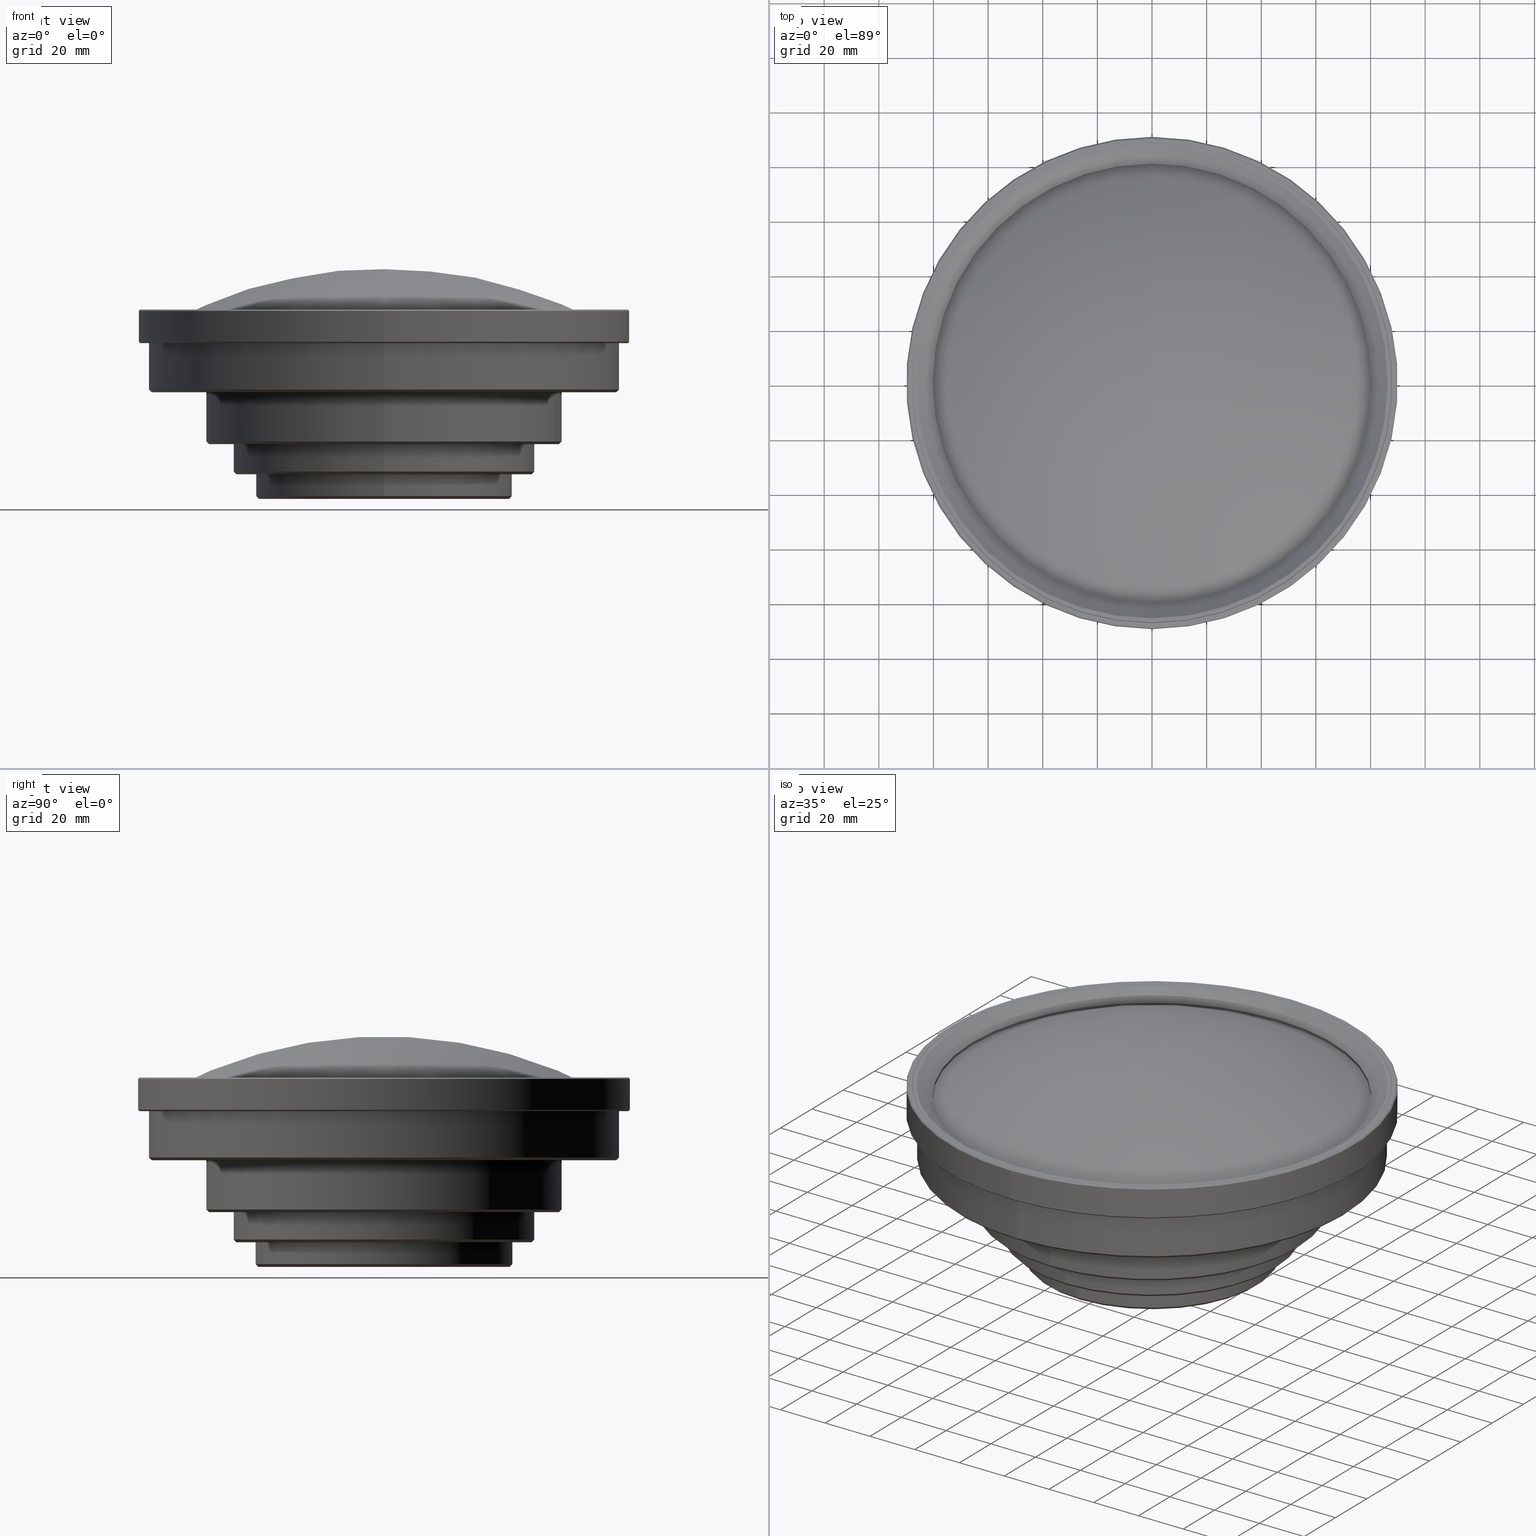
[diagram: canonical four-view strip — front | top / right | iso, engineering-drawing reading convention]
A machine part, canonical four-view strip (front | top / right | iso — engineering-drawing reading convention). The complete STEP part file that produces these views, byte-faithful:
ISO-10303-21;
HEADER;
FILE_DESCRIPTION (( 'STEP AP203' ),
    '1' );
FILE_NAME ('630016.STEP',
    '2021-06-03T01:59:35',
    ( '' ),
    ( '' ),
    'SwSTEP 2.0',
    'SolidWorks 2020',
    '' );
FILE_SCHEMA (( 'CONFIG_CONTROL_DESIGN' ));
ENDSEC;

DATA;
#1 = DIRECTION ( 'NONE',  ( 0.000000000000000000, 1.000000000000000000, 0.000000000000000000 ) ) ;
#2 = EDGE_LOOP ( 'NONE', ( #396, #834, #183, #382 ) ) ;
#3 = VECTOR ( 'NONE', #704, 1000.000000000000000 ) ;
#4 = LINE ( 'NONE', #1052, #856 ) ;
#5 = CIRCLE ( 'NONE', #1102, 28.27500000000000213 ) ;
#6 = CIRCLE ( 'NONE', #405, 63.99999999918000526 ) ;
#7 = CARTESIAN_POINT ( 'NONE',  ( 0.000000000000000000, -28.27500000000000213, 6.994453782714999512 ) ) ;
#8 = PRODUCT_DEFINITION_FORMATION_WITH_SPECIFIED_SOURCE ( '�κ�', '', #39, .NOT_KNOWN. ) ;
#9 = CARTESIAN_POINT ( 'NONE',  ( 0.000000000000000000, -1.122797425597999966E-14, 15.17999999909999964 ) ) ;
#10 = EDGE_LOOP ( 'NONE', ( #61, #179, #255, #917 ) ) ;
#11 = CARTESIAN_POINT ( 'NONE',  ( 0.000000000000000000, -1.122797425597999966E-14, 75.49999506530998872 ) ) ;
#12 = ADVANCED_FACE ( 'NONE', ( #160 ), #872, .T. ) ;
#13 = DIRECTION ( 'NONE',  ( 0.000000000000000000, 0.000000000000000000, -1.000000000000000000 ) ) ;
#14 = DIRECTION ( 'NONE',  ( 0.000000000000000000, -1.000000000000000000, 0.000000000000000000 ) ) ;
#15 = CARTESIAN_POINT ( 'NONE',  ( 0.000000000000000000, -1.122797425597999966E-14, 94.71599481863999870 ) ) ;
#16 = ORIENTED_EDGE ( 'NONE', *, *, #488, .F. ) ;
#17 = LINE ( 'NONE', #598, #781 ) ;
#18 = EDGE_CURVE ( 'NONE', #243, #521, #77, .T. ) ;
#19 = CARTESIAN_POINT ( 'NONE',  ( 0.000000000000000000, 55.00000000000000000, 26.17999999918000142 ) ) ;
#20 = DIRECTION ( 'NONE',  ( 0.000000000000000000, 0.000000000000000000, -1.000000000000000000 ) ) ;
#21 = EDGE_LOOP ( 'NONE', ( #868, #413, #91, #739 ) ) ;
#22 = FACE_OUTER_BOUND ( 'NONE', #102, .T. ) ;
#23 = VECTOR ( 'NONE', #116, 1000.000000000000114 ) ;
#24 = AXIS2_PLACEMENT_3D ( 'NONE', #323, #502, #648 ) ;
#25 = DIRECTION ( 'NONE',  ( 0.000000000000000000, -1.000000000000000000, 0.000000000000000000 ) ) ;
#26 = CIRCLE ( 'NONE', #170, 89.49999999959999286 ) ;
#27 = DIRECTION ( 'NONE',  ( 0.000000000000000000, 0.000000000000000000, -1.000000000000000000 ) ) ;
#28 = CARTESIAN_POINT ( 'NONE',  ( 0.000000000000000000, -65.00000000000000000, 27.17999999999999972 ) ) ;
#29 = ORIENTED_EDGE ( 'NONE', *, *, #976, .T. ) ;
#30 = EDGE_CURVE ( 'NONE', #734, #1082, #338, .T. ) ;
#31 = DIRECTION ( 'NONE',  ( 0.000000000000000000, 1.000000000000000000, 0.000000000000000000 ) ) ;
#32 = CYLINDRICAL_SURFACE ( 'NONE', #528, 65.00000000000000000 ) ;
#33 = LINE ( 'NONE', #902, #553 ) ;
#34 = DIRECTION ( 'NONE',  ( 0.000000000000000000, -1.000000000000000000, 0.000000000000000000 ) ) ;
#35 = EDGE_LOOP ( 'NONE', ( #843, #310, #439, #453 ) ) ;
#36 = EDGE_CURVE ( 'NONE', #292, #1082, #925, .T. ) ;
#37 = CARTESIAN_POINT ( 'NONE',  ( 0.000000000000000000, -1.122797425597999966E-14, 6.179999998648999515 ) ) ;
#38 = CARTESIAN_POINT ( 'NONE',  ( 0.000000000000000000, -1.122797425597999966E-14, 94.71599481863999870 ) ) ;
#39 = PRODUCT ( '630016', '630016', '', ( #408 ) ) ;
#40 = DIRECTION ( 'NONE',  ( 0.000000000000000000, -1.000000000000000000, 0.000000000000000000 ) ) ;
#41 = DIRECTION ( 'NONE',  ( 0.000000000000000000, 1.000000000000000000, 0.000000000000000000 ) ) ;
#42 = EDGE_LOOP ( 'NONE', ( #87, #458, #892, #219 ) ) ;
#43 = DIRECTION ( 'NONE',  ( 0.000000000000000000, 0.000000000000000000, 1.000000000000000000 ) ) ;
#44 = CARTESIAN_POINT ( 'NONE',  ( 0.000000000000000000, 89.49999999954000884, 75.49999506576999408 ) ) ;
#45 = AXIS2_PLACEMENT_3D ( 'NONE', #602, #330, #689 ) ;
#46 = COORDINATED_UNIVERSAL_TIME_OFFSET ( 8, 0, .AHEAD. ) ;
#47 = CARTESIAN_POINT ( 'NONE',  ( 0.000000000000000000, 65.00000000000000000, 27.17999999999999972 ) ) ;
#48 = ORIENTED_EDGE ( 'NONE', *, *, #932, .F. ) ;
#49 = CONICAL_SURFACE ( 'NONE', #481, 89.74999999980001064, 0.7853981633972997312 ) ;
#50 = AXIS2_PLACEMENT_3D ( 'NONE', #865, #534, #784 ) ;
#51 = CARTESIAN_POINT ( 'NONE',  ( 0.000000000000000000, 63.99999999918000526, 26.17999999918000142 ) ) ;
#52 = EDGE_CURVE ( 'NONE', #144, #113, #207, .T. ) ;
#53 = APPROVAL_STATUS ( 'not_yet_approved' ) ;
#54 = ORIENTED_EDGE ( 'NONE', *, *, #882, .T. ) ;
#55 = ORIENTED_EDGE ( 'NONE', *, *, #555, .F. ) ;
#56 = CARTESIAN_POINT ( 'NONE',  ( 0.000000000000000000, 45.99999999864999722, 6.179999998648999515 ) ) ;
#57 = EDGE_CURVE ( 'NONE', #1029, #649, #177, .T. ) ;
#58 = COORDINATED_UNIVERSAL_TIME_OFFSET ( 8, 0, .AHEAD. ) ;
#59 = ORIENTED_EDGE ( 'NONE', *, *, #932, .T. ) ;
#60 = ORIENTED_EDGE ( 'NONE', *, *, #922, .F. ) ;
#61 = ORIENTED_EDGE ( 'NONE', *, *, #418, .T. ) ;
#62 = CC_DESIGN_PERSON_AND_ORGANIZATION_ASSIGNMENT ( #753, #1081, ( #8 ) ) ;
#63 = CONICAL_SURFACE ( 'NONE', #871, 87.88169340384000350, 0.7853981633972997312 ) ;
#64 = ADVANCED_FACE ( 'NONE', ( #590 ), #773, .F. ) ;
#65 = CONICAL_SURFACE ( 'NONE', #331, 46.49999999862999545, 0.7853981633972997312 ) ;
#66 = DIRECTION ( 'NONE',  ( 0.000000000000000000, -0.7071067811865474617, -0.7071067811865474617 ) ) ;
#67 = APPROVAL_STATUS ( 'not_yet_approved' ) ;
#68 = ORIENTED_EDGE ( 'NONE', *, *, #882, .F. ) ;
#69 = EDGE_CURVE ( 'NONE', #626, #199, #269, .T. ) ;
#70 = CARTESIAN_POINT ( 'NONE',  ( 0.000000000000000000, -1.122797425597999966E-14, 63.17999999959999968 ) ) ;
#71 = EDGE_LOOP ( 'NONE', ( #192, #846, #156, #167 ) ) ;
#72 = CARTESIAN_POINT ( 'NONE',  ( 0.000000000000000000, 47.00000000000000000, 15.17999999909999964 ) ) ;
#73 = ORIENTED_EDGE ( 'NONE', *, *, #1047, .T. ) ;
#74 = APPROVAL ( #53, 'δָ��' ) ;
#75 = FACE_OUTER_BOUND ( 'NONE', #336, .T. ) ;
#76 = ORIENTED_EDGE ( 'NONE', *, *, #730, .T. ) ;
#77 = CIRCLE ( 'NONE', #149, 80.25000000000000000 ) ;
#78 = CARTESIAN_POINT ( 'NONE',  ( 0.000000000000000000, -1.122797425597999966E-14, 6.179999998648999515 ) ) ;
#79 = ORIENTED_EDGE ( 'NONE', *, *, #555, .T. ) ;
#80 = AXIS2_PLACEMENT_3D ( 'NONE', #796, #373, #216 ) ;
#81 = AXIS2_PLACEMENT_3D ( 'NONE', #9, #949, #174 ) ;
#82 = AXIS2_PLACEMENT_3D ( 'NONE', #861, #712, #703 ) ;
#83 = CIRCLE ( 'NONE', #782, 90.00000000000000000 ) ;
#84 = LINE ( 'NONE', #1111, #926 ) ;
#85 = EDGE_CURVE ( 'NONE', #401, #150, #549, .T. ) ;
#86 = CARTESIAN_POINT ( 'NONE',  ( 0.000000000000000000, -1.122797425597999966E-14, 75.49999506530998872 ) ) ;
#87 = ORIENTED_EDGE ( 'NONE', *, *, #518, .T. ) ;
#88 = DIRECTION ( 'NONE',  ( 0.000000000000000000, 1.000000000000000000, 0.000000000000000000 ) ) ;
#89 = DIRECTION ( 'NONE',  ( 0.000000000000000000, 1.000000000000000000, 0.000000000000000000 ) ) ;
#90 = FACE_BOUND ( 'NONE', #548, .T. ) ;
#91 = ORIENTED_EDGE ( 'NONE', *, *, #945, .F. ) ;
#92 = CARTESIAN_POINT ( 'NONE',  ( 0.000000000000000000, 84.99999999962000174, 45.17999999961999436 ) ) ;
#93 = DIRECTION ( 'NONE',  ( 0.000000000000000000, 0.000000000000000000, -1.000000000000000000 ) ) ;
#94 = LINE ( 'NONE', #344, #277 ) ;
#95 = ORIENTED_EDGE ( 'NONE', *, *, #473, .F. ) ;
#96 = EDGE_CURVE ( 'NONE', #173, #490, #656, .T. ) ;
#97 = CIRCLE ( 'NONE', #45, 65.00000000000000000 ) ;
#98 = CARTESIAN_POINT ( 'NONE',  ( 0.000000000000000000, 63.99999999918000526, 26.17999999918000142 ) ) ;
#99 = AXIS2_PLACEMENT_3D ( 'NONE', #412, #306, #1024 ) ;
#100 = DIRECTION ( 'NONE',  ( 0.000000000000000000, 1.000000000000000000, 0.000000000000000000 ) ) ;
#101 = CARTESIAN_POINT ( 'NONE',  ( 0.000000000000000000, -80.25000000000000000, 71.06338187298000264 ) ) ;
#102 = EDGE_LOOP ( 'NONE', ( #530, #611, #827, #1016 ) ) ;
#103 = EDGE_CURVE ( 'NONE', #292, #309, #694, .T. ) ;
#104 = CARTESIAN_POINT ( 'NONE',  ( 0.000000000000000000, -1.122797425597999966E-14, 45.17999999961999436 ) ) ;
#105 = CYLINDRICAL_SURFACE ( 'NONE', #479, 47.00000000000000000 ) ;
#106 = DIRECTION ( 'NONE',  ( 0.000000000000000000, -1.000000000000000000, 0.000000000000000000 ) ) ;
#107 = FACE_OUTER_BOUND ( 'NONE', #874, .T. ) ;
#108 = ORIENTED_EDGE ( 'NONE', *, *, #172, .F. ) ;
#109 = CARTESIAN_POINT ( 'NONE',  ( 0.000000000000000000, -45.99999999864999722, 6.179999998648999515 ) ) ;
#110 = ADVANCED_FACE ( 'NONE', ( #527 ), #63, .F. ) ;
#111 = CARTESIAN_POINT ( 'NONE',  ( 0.000000000000000000, 80.25000000000000000, 70.06338187298000264 ) ) ;
#112 = CARTESIAN_POINT ( 'NONE',  ( 1.102182119232999878E-14, 90.00000000000000000, 63.67999999999999972 ) ) ;
#113 = VERTEX_POINT ( 'NONE', #757 ) ;
#114 = FACE_OUTER_BOUND ( 'NONE', #1072, .T. ) ;
#115 = CIRCLE ( 'NONE', #1004, 28.27500000000000213 ) ;
#116 = DIRECTION ( 'NONE',  ( 0.000000000000000000, 0.7071067811865474617, -0.7071067811865474617 ) ) ;
#117 = CONICAL_SURFACE ( 'NONE', #1036, 89.74999999965000086, 0.7853981633972997312 ) ;
#118 = ADVANCED_FACE ( 'NONE', ( #678 ), #385, .T. ) ;
#119 = CARTESIAN_POINT ( 'NONE',  ( 0.000000000000000000, -1.122797425597999966E-14, 75.26338187297999127 ) ) ;
#120 = CARTESIAN_POINT ( 'NONE',  ( 0.000000000000000000, -1.122797425597999966E-14, 94.71599481863999870 ) ) ;
#121 = ORIENTED_EDGE ( 'NONE', *, *, #797, .T. ) ;
#122 = AXIS2_PLACEMENT_3D ( 'NONE', #37, #487, #1000 ) ;
#123 = CARTESIAN_POINT ( 'NONE',  ( 0.000000000000000000, -1.122797425597999966E-14, 6.179999998648999515 ) ) ;
#124 = LINE ( 'NONE', #718, #911 ) ;
#125 = DIRECTION ( 'NONE',  ( 0.000000000000000000, 1.000000000000000000, 0.000000000000000000 ) ) ;
#126 = DIRECTION ( 'NONE',  ( 0.000000000000000000, 1.000000000000000000, 0.000000000000000000 ) ) ;
#127 = ORIENTED_EDGE ( 'NONE', *, *, #268, .T. ) ;
#128 = DIRECTION ( 'NONE',  ( 0.000000000000000000, 1.000000000000000000, 0.000000000000000000 ) ) ;
#129 = DIRECTION ( 'NONE',  ( 0.000000000000000000, 0.000000000000000000, -1.000000000000000000 ) ) ;
#130 = CARTESIAN_POINT ( 'NONE',  ( 0.000000000000000000, -1.122797425597999966E-14, 26.17999999918000142 ) ) ;
#131 = ORIENTED_EDGE ( 'NONE', *, *, #581, .T. ) ;
#132 = DIRECTION ( 'NONE',  ( 0.000000000000000000, 0.000000000000000000, -1.000000000000000000 ) ) ;
#133 = APPROVAL_DATE_TIME ( #145, #74 ) ;
#134 = AXIS2_PLACEMENT_3D ( 'NONE', #512, #675, #524 ) ;
#135 = DIRECTION ( 'NONE',  ( 0.000000000000000000, 0.000000000000000000, 1.000000000000000000 ) ) ;
#136 = ORIENTED_EDGE ( 'NONE', *, *, #991, .T. ) ;
#137 = VECTOR ( 'NONE', #135, 1000.000000000000000 ) ;
#138 = ORIENTED_EDGE ( 'NONE', *, *, #36, .T. ) ;
#139 = DESIGN_CONTEXT ( 'detailed design', #515, 'design' ) ;
#140 = CARTESIAN_POINT ( 'NONE',  ( 0.000000000000000000, -1.122797425597999966E-14, 63.17999999959999968 ) ) ;
#141 = EDGE_CURVE ( 'NONE', #391, #1057, #768, .T. ) ;
#142 = PERSON_AND_ORGANIZATION_ROLE ( 'creator' ) ;
#143 = ORIENTED_EDGE ( 'NONE', *, *, #85, .T. ) ;
#144 = VERTEX_POINT ( 'NONE', #1054 ) ;
#145 = DATE_AND_TIME ( #578, #957 ) ;
#146 = VERTEX_POINT ( 'NONE', #1060 ) ;
#147 = VERTEX_POINT ( 'NONE', #470 ) ;
#148 = ADVANCED_FACE ( 'NONE', ( #978 ), #942, .F. ) ;
#149 = AXIS2_PLACEMENT_3D ( 'NONE', #953, #1041, #100 ) ;
#150 = VERTEX_POINT ( 'NONE', #889 ) ;
#151 = AXIS2_PLACEMENT_3D ( 'NONE', #224, #407, #246 ) ;
#152 = CIRCLE ( 'NONE', #823, 55.00000000000000000 ) ;
#153 = APPROVAL_PERSON_ORGANIZATION ( #324, #544, #402 ) ;
#154 = DIRECTION ( 'NONE',  ( 0.000000000000000000, -0.7071067811864976127, 0.7071067811865975328 ) ) ;
#155 = CALENDAR_DATE ( 2021, 3, 6 ) ;
#156 = ORIENTED_EDGE ( 'NONE', *, *, #941, .F. ) ;
#157 = CC_DESIGN_PERSON_AND_ORGANIZATION_ASSIGNMENT ( #732, #585, ( #1074 ) ) ;
#158 = ORIENTED_EDGE ( 'NONE', *, *, #581, .F. ) ;
#159 = CARTESIAN_POINT ( 'NONE',  ( 0.000000000000000000, -1.122797425597999966E-14, 27.17999999999999972 ) ) ;
#160 = FACE_OUTER_BOUND ( 'NONE', #423, .T. ) ;
#161 = CARTESIAN_POINT ( 'NONE',  ( 0.000000000000000000, 28.27500000000000213, 6.994453782714999512 ) ) ;
#162 = ORIENTED_EDGE ( 'NONE', *, *, #172, .T. ) ;
#163 = ADVANCED_FACE ( 'NONE', ( #613 ), #723, .F. ) ;
#164 = DIRECTION ( 'NONE',  ( 0.000000000000000000, 0.000000000000000000, -1.000000000000000000 ) ) ;
#165 = DIRECTION ( 'NONE',  ( 0.000000000000000000, 0.000000000000000000, -1.000000000000000000 ) ) ;
#166 = FACE_OUTER_BOUND ( 'NONE', #395, .T. ) ;
#167 = ORIENTED_EDGE ( 'NONE', *, *, #411, .F. ) ;
#168 = AXIS2_PLACEMENT_3D ( 'NONE', #329, #1020, #247 ) ;
#169 = CIRCLE ( 'NONE', #1073, 90.00000000000000000 ) ;
#170 = AXIS2_PLACEMENT_3D ( 'NONE', #140, #915, #645 ) ;
#171 = CARTESIAN_POINT ( 'NONE',  ( 0.000000000000000000, -1.122797425597999966E-14, 6.679999998633999958 ) ) ;
#172 = EDGE_CURVE ( 'NONE', #236, #931, #312, .T. ) ;
#173 = VERTEX_POINT ( 'NONE', #990 ) ;
#174 = DIRECTION ( 'NONE',  ( 0.000000000000000000, 1.000000000000000000, 0.000000000000000000 ) ) ;
#175 = ORIENTED_EDGE ( 'NONE', *, *, #737, .F. ) ;
#176 = DIRECTION ( 'NONE',  ( 0.000000000000000000, 0.000000000000000000, -1.000000000000000000 ) ) ;
#177 = LINE ( 'NONE', #866, #890 ) ;
#178 = DIRECTION ( 'NONE',  ( 0.000000000000000000, 8.627676351350999926E-11, 1.000000000000000000 ) ) ;
#179 = ORIENTED_EDGE ( 'NONE', *, *, #681, .T. ) ;
#180 = CARTESIAN_POINT ( 'NONE',  ( 0.000000000000000000, 89.49999999959999286, 63.17999999959999968 ) ) ;
#181 = DIRECTION ( 'NONE',  ( 0.000000000000000000, 1.000000000000000000, 0.000000000000000000 ) ) ;
#182 = SPHERICAL_SURFACE ( 'NONE', #1017, 167.7801892671000132 ) ;
#183 = ORIENTED_EDGE ( 'NONE', *, *, #698, .F. ) ;
#184 = ADVANCED_FACE ( 'NONE', ( #623 ), #105, .T. ) ;
#185 = AXIS2_PLACEMENT_3D ( 'NONE', #429, #595, #1038 ) ;
#186 = CIRCLE ( 'NONE', #81, 53.99999999909999815 ) ;
#187 = CARTESIAN_POINT ( 'NONE',  ( 0.000000000000000000, -1.122797425597999966E-14, 26.67999999958999879 ) ) ;
#188 = AXIS2_PLACEMENT_3D ( 'NONE', #275, #1049, #1061 ) ;
#189 = AXIS2_PLACEMENT_3D ( 'NONE', #1098, #327, #670 ) ;
#190 = CARTESIAN_POINT ( 'NONE',  ( 0.000000000000000000, -1.122797425597999966E-14, -764.4195681487999536 ) ) ;
#191 = FACE_OUTER_BOUND ( 'NONE', #690, .T. ) ;
#192 = ORIENTED_EDGE ( 'NONE', *, *, #465, .T. ) ;
#193 = CC_DESIGN_PERSON_AND_ORGANIZATION_ASSIGNMENT ( #748, #835, ( #8 ) ) ;
#194 = ADVANCED_FACE ( 'NONE', ( #1069, #808 ), #1064, .F. ) ;
#195 = CARTESIAN_POINT ( 'NONE',  ( 0.000000000000000000, -1.122797425597999966E-14, 71.06338187298000264 ) ) ;
#196 = FACE_OUTER_BOUND ( 'NONE', #35, .T. ) ;
#197 = CYLINDRICAL_SURFACE ( 'NONE', #463, 86.00000000000000000 ) ;
#198 = CARTESIAN_POINT ( 'NONE',  ( 0.000000000000000000, -1.122797425597999966E-14, 75.26338187297999127 ) ) ;
#199 = VERTEX_POINT ( 'NONE', #560 ) ;
#200 = DIRECTION ( 'NONE',  ( 0.000000000000000000, 1.000000000000000000, 0.000000000000000000 ) ) ;
#201 = ADVANCED_FACE ( 'NONE', ( #641 ), #965, .T. ) ;
#202 = CARTESIAN_POINT ( 'NONE',  ( 0.000000000000000000, -65.00000000000000000, 27.17999999999999972 ) ) ;
#203 = DIRECTION ( 'NONE',  ( 0.000000000000000000, 0.000000000000000000, -1.000000000000000000 ) ) ;
#204 = DIRECTION ( 'NONE',  ( 0.000000000000000000, -0.7071067811865474617, 0.7071067811865474617 ) ) ;
#205 = ORIENTED_EDGE ( 'NONE', *, *, #832, .F. ) ;
#206 = CARTESIAN_POINT ( 'NONE',  ( 0.000000000000000000, -1.122797425597999966E-14, -77.28019420175000675 ) ) ;
#207 = CIRCLE ( 'NONE', #419, 86.00000000000000000 ) ;
#208 = PRODUCT_DEFINITION ( 'δ֪', '', #8, #139 ) ;
#209 = AXIS2_PLACEMENT_3D ( 'NONE', #252, #756, #337 ) ;
#210 = DIRECTION ( 'NONE',  ( 0.000000000000000000, 0.000000000000000000, -1.000000000000000000 ) ) ;
#211 = AXIS2_PLACEMENT_3D ( 'NONE', #285, #132, #995 ) ;
#212 = LINE ( 'NONE', #1065, #671 ) ;
#213 = ORIENTED_EDGE ( 'NONE', *, *, #762, .F. ) ;
#214 = AXIS2_PLACEMENT_3D ( 'NONE', #319, #305, #1013 ) ;
#215 = DIRECTION ( 'NONE',  ( 0.000000000000000000, 1.000000000000000000, 0.000000000000000000 ) ) ;
#216 = DIRECTION ( 'NONE',  ( 0.000000000000000000, 1.000000000000000000, 0.000000000000000000 ) ) ;
#217 = FACE_OUTER_BOUND ( 'NONE', #403, .T. ) ;
#218 = DIRECTION ( 'NONE',  ( 0.000000000000000000, 1.000000000000000000, 0.000000000000000000 ) ) ;
#219 = ORIENTED_EDGE ( 'NONE', *, *, #501, .F. ) ;
#220 = ADVANCED_FACE ( 'NONE', ( #196 ), #531, .T. ) ;
#221 = DIRECTION ( 'NONE',  ( 0.000000000000000000, 1.000000000000000000, 0.000000000000000000 ) ) ;
#222 = CARTESIAN_POINT ( 'NONE',  ( 0.000000000000000000, -1.122797425597999966E-14, 94.71599481863999870 ) ) ;
#223 = DATE_AND_TIME ( #740, #516 ) ;
#224 = CARTESIAN_POINT ( 'NONE',  ( 0.000000000000000000, -1.122797425597999966E-14, 45.17999999961999436 ) ) ;
#225 = EDGE_LOOP ( 'NONE', ( #1027, #370, #755, #525 ) ) ;
#226 = ADVANCED_FACE ( 'NONE', ( #1046 ), #273, .F. ) ;
#227 = DIRECTION ( 'NONE',  ( 0.000000000000000000, 0.8191520442890162235, -0.5735764363510111874 ) ) ;
#228 = AXIS2_PLACEMENT_3D ( 'NONE', #450, #901, #540 ) ;
#229 = AXIS2_PLACEMENT_3D ( 'NONE', #198, #1019, #593 ) ;
#230 = VERTEX_POINT ( 'NONE', #19 ) ;
#231 = AXIS2_PLACEMENT_3D ( 'NONE', #342, #354, #1045 ) ;
#232 = AXIS2_PLACEMENT_3D ( 'NONE', #798, #624, #40 ) ;
#233 = ORIENTED_EDGE ( 'NONE', *, *, #769, .T. ) ;
#234 = DATE_TIME_ROLE ( 'classification_date' ) ;
#235 = VERTEX_POINT ( 'NONE', #629 ) ;
#236 = VERTEX_POINT ( 'NONE', #883 ) ;
#237 = EDGE_CURVE ( 'NONE', #490, #1079, #360, .T. ) ;
#238 = APPROVAL_STATUS ( 'not_yet_approved' ) ;
#239 = ORIENTED_EDGE ( 'NONE', *, *, #837, .F. ) ;
#240 = ORIENTED_EDGE ( 'NONE', *, *, #334, .T. ) ;
#241 = PLANE ( 'NONE',  #1055 ) ;
#242 = DATE_TIME_ROLE ( 'creation_date' ) ;
#243 = VERTEX_POINT ( 'NONE', #111 ) ;
#244 = CIRCLE ( 'NONE', #745, 87.76338680767000255 ) ;
#245 = AXIS2_PLACEMENT_3D ( 'NONE', #104, #366, #693 ) ;
#246 = DIRECTION ( 'NONE',  ( 0.000000000000000000, 1.000000000000000000, 0.000000000000000000 ) ) ;
#247 = DIRECTION ( 'NONE',  ( 0.000000000000000000, 1.000000000000000000, 0.000000000000000000 ) ) ;
#248 = APPLICATION_CONTEXT ( 'configuration controlled 3d designs of mechanical parts and assemblies' ) ;
#249 = CARTESIAN_POINT ( 'NONE',  ( 0.000000000000000000, -1.122797425597999966E-14, 15.17999999909999964 ) ) ;
#250 = ORIENTED_EDGE ( 'NONE', *, *, #488, .T. ) ;
#251 = EDGE_CURVE ( 'NONE', #685, #490, #124, .T. ) ;
#252 = CARTESIAN_POINT ( 'NONE',  ( 0.000000000000000000, -1.122797425597999966E-14, 75.24999506566000207 ) ) ;
#253 = CARTESIAN_POINT ( 'NONE',  ( 1.102182119232999878E-14, 90.00000000000000000, 74.99999506530998872 ) ) ;
#254 = DIRECTION ( 'NONE',  ( 0.000000000000000000, 1.000000000000000000, 0.000000000000000000 ) ) ;
#255 = ORIENTED_EDGE ( 'NONE', *, *, #769, .F. ) ;
#256 = EDGE_CURVE ( 'NONE', #150, #999, #546, .T. ) ;
#257 = PLANE ( 'NONE',  #674 ) ;
#258 = DIRECTION ( 'NONE',  ( 0.000000000000000000, -8.627409897825000708E-11, 1.000000000000000000 ) ) ;
#259 = FACE_OUTER_BOUND ( 'NONE', #588, .T. ) ;
#260 = ORIENTED_EDGE ( 'NONE', *, *, #730, .F. ) ;
#261 = CIRCLE ( 'NONE', #913, 86.00000000000000000 ) ;
#262 = CIRCLE ( 'NONE', #640, 55.00000000000000000 ) ;
#263 = DIRECTION ( 'NONE',  ( 0.000000000000000000, 0.7071067811865474617, 0.7071067811865474617 ) ) ;
#264 = CARTESIAN_POINT ( 'NONE',  ( 0.000000000000000000, -1.122797425597999966E-14, 74.99999506530998872 ) ) ;
#265 = FACE_OUTER_BOUND ( 'NONE', #636, .T. ) ;
#266 = EDGE_LOOP ( 'NONE', ( #655, #537 ) ) ;
#267 = DIRECTION ( 'NONE',  ( 0.000000000000000000, 0.000000000000000000, 1.000000000000000000 ) ) ;
#268 = EDGE_CURVE ( 'NONE', #1039, #1029, #584, .T. ) ;
#269 = LINE ( 'NONE', #7, #687 ) ;
#270 = CARTESIAN_POINT ( 'NONE',  ( 0.000000000000000000, -1.122797425597999966E-14, 45.67999999981000059 ) ) ;
#271 = ORIENTED_EDGE ( 'NONE', *, *, #1093, .F. ) ;
#272 = CARTESIAN_POINT ( 'NONE',  ( 0.000000000000000000, 55.00000000000000000, 16.17999999999999972 ) ) ;
#273 = SPHERICAL_SURFACE ( 'NONE', #759, 771.9320364239000583 ) ;
#274 = CARTESIAN_POINT ( 'NONE',  ( 0.000000000000000000, -45.99999999864999722, 6.179999998648999515 ) ) ;
#275 = CARTESIAN_POINT ( 'NONE',  ( 0.000000000000000000, -1.122797425597999966E-14, 6.179999998648999515 ) ) ;
#276 = EDGE_LOOP ( 'NONE', ( #558, #1008 ) ) ;
#277 = VECTOR ( 'NONE', #422, 1000.000000000000000 ) ;
#278 = DIRECTION ( 'NONE',  ( 0.000000000000000000, 0.000000000000000000, -1.000000000000000000 ) ) ;
#279 = CONICAL_SURFACE ( 'NONE', #729, 64.49999999959000263, 0.7853981633972997312 ) ;
#280 = VECTOR ( 'NONE', #878, 1000.000000000000114 ) ;
#281 = DIRECTION ( 'NONE',  ( 0.000000000000000000, 0.000000000000000000, 1.000000000000000000 ) ) ;
#282 = CARTESIAN_POINT ( 'NONE',  ( 0.000000000000000000, -1.122797425597999966E-14, 6.994453782714999512 ) ) ;
#283 = ORIENTED_EDGE ( 'NONE', *, *, #824, .T. ) ;
#284 = ADVANCED_FACE ( 'NONE', ( #554 ), #32, .T. ) ;
#285 = CARTESIAN_POINT ( 'NONE',  ( 0.000000000000000000, -1.122797425597999966E-14, 16.17999999999999972 ) ) ;
#286 =( LENGTH_UNIT ( ) NAMED_UNIT ( * ) SI_UNIT ( .MILLI., .METRE. ) );
#287 = CYLINDRICAL_SURFACE ( 'NONE', #532, 80.25000000000000000 ) ;
#288 = EDGE_LOOP ( 'NONE', ( #138, #472, #468, #250 ) ) ;
#289 = CARTESIAN_POINT ( 'NONE',  ( 0.000000000000000000, -86.24822162831999606, 75.26338187297999127 ) ) ;
#290 = CARTESIAN_POINT ( 'NONE',  ( 0.000000000000000000, -88.00000000000000000, 75.49999506530998872 ) ) ;
#291 = FACE_OUTER_BOUND ( 'NONE', #21, .T. ) ;
#292 = VERTEX_POINT ( 'NONE', #731 ) ;
#293 = DIRECTION ( 'NONE',  ( -1.000000000000000000, 0.000000000000000000, 0.000000000000000000 ) ) ;
#294 = VECTOR ( 'NONE', #1117, 1000.000000000000000 ) ;
#295 = EDGE_CURVE ( 'NONE', #880, #734, #1053, .T. ) ;
#296 = DIRECTION ( 'NONE',  ( 0.000000000000000000, 0.000000000000000000, -1.000000000000000000 ) ) ;
#297 = CIRCLE ( 'NONE', #245, 84.99999999962000174 ) ;
#298 = DIRECTION ( 'NONE',  ( 0.000000000000000000, 0.000000000000000000, -1.000000000000000000 ) ) ;
#299 = DIRECTION ( 'NONE',  ( 0.000000000000000000, 0.000000000000000000, 1.000000000000000000 ) ) ;
#300 = EDGE_LOOP ( 'NONE', ( #233, #1114, #680, #363 ) ) ;
#301 = AXIS2_PLACEMENT_3D ( 'NONE', #206, #293, #383 ) ;
#302 = CARTESIAN_POINT ( 'NONE',  ( 0.000000000000000000, -1.122797425597999966E-14, 7.179999999999999716 ) ) ;
#303 = CARTESIAN_POINT ( 'NONE',  ( 0.000000000000000000, -1.122797425597999966E-14, 63.67999999999999972 ) ) ;
#304 = ADVANCED_FACE ( 'NONE', ( #1077 ), #815, .T. ) ;
#305 = DIRECTION ( 'NONE',  ( 0.000000000000000000, 0.000000000000000000, 1.000000000000000000 ) ) ;
#306 = DIRECTION ( 'NONE',  ( 0.000000000000000000, 0.000000000000000000, -1.000000000000000000 ) ) ;
#307 = ORIENTED_EDGE ( 'NONE', *, *, #1058, .F. ) ;
#308 = CARTESIAN_POINT ( 'NONE',  ( 0.000000000000000000, -1.122797425597999966E-14, 26.17999999918000142 ) ) ;
#309 = VERTEX_POINT ( 'NONE', #44 ) ;
#310 = ORIENTED_EDGE ( 'NONE', *, *, #449, .T. ) ;
#311 = EDGE_CURVE ( 'NONE', #994, #1079, #97, .T. ) ;
#312 = CIRCLE ( 'NONE', #80, 53.99999999909999815 ) ;
#313 = AXIS2_PLACEMENT_3D ( 'NONE', #120, #467, #362 ) ;
#314 = ORIENTED_EDGE ( 'NONE', *, *, #832, .T. ) ;
#315 = CIRCLE ( 'NONE', #50, 771.9320364239000583 ) ;
#316 = CIRCLE ( 'NONE', #301, 167.7801892671000132 ) ;
#317 = ORIENTED_EDGE ( 'NONE', *, *, #1021, .F. ) ;
#318 = EDGE_CURVE ( 'NONE', #406, #144, #673, .T. ) ;
#319 = CARTESIAN_POINT ( 'NONE',  ( 0.000000000000000000, 0.000000000000000000, 0.000000000000000000 ) ) ;
#320 = ORIENTED_EDGE ( 'NONE', *, *, #587, .T. ) ;
#321 = ORIENTED_EDGE ( 'NONE', *, *, #618, .F. ) ;
#322 = PRODUCT_RELATED_PRODUCT_CATEGORY ( 'detail', '', ( #39 ) ) ;
#323 = CARTESIAN_POINT ( 'NONE',  ( 0.000000000000000000, -1.122797425597999966E-14, 75.49999506599999677 ) ) ;
#324 = PERSON_AND_ORGANIZATION ( #735, #425 ) ;
#325 = EDGE_LOOP ( 'NONE', ( #127, #353, #969, #683 ) ) ;
#326 = VERTEX_POINT ( 'NONE', #72 ) ;
#327 = DIRECTION ( 'NONE',  ( 0.000000000000000000, 0.000000000000000000, -1.000000000000000000 ) ) ;
#328 = AXIS2_PLACEMENT_3D ( 'NONE', #249, #1100, #415 ) ;
#329 = CARTESIAN_POINT ( 'NONE',  ( 0.000000000000000000, -1.122797425597999966E-14, 6.679999998633999958 ) ) ;
#330 = DIRECTION ( 'NONE',  ( 0.000000000000000000, 0.000000000000000000, 1.000000000000000000 ) ) ;
#331 = AXIS2_PLACEMENT_3D ( 'NONE', #171, #267, #605 ) ;
#332 = CARTESIAN_POINT ( 'NONE',  ( 0.000000000000000000, -1.122797425597999966E-14, 73.16338187297999696 ) ) ;
#333 = CARTESIAN_POINT ( 'NONE',  ( 0.000000000000000000, -1.122797425597999966E-14, 75.49999506530998872 ) ) ;
#334 = EDGE_CURVE ( 'NONE', #146, #358, #364, .T. ) ;
#335 = DIRECTION ( 'NONE',  ( 0.000000000000000000, 0.000000000000000000, 1.000000000000000000 ) ) ;
#336 = EDGE_LOOP ( 'NONE', ( #833, #582, #1003, #76 ) ) ;
#337 = DIRECTION ( 'NONE',  ( 0.000000000000000000, -1.000000000000000000, 0.000000000000000000 ) ) ;
#338 = LINE ( 'NONE', #1025, #599 ) ;
#339 = CARTESIAN_POINT ( 'NONE',  ( 0.000000000000000000, 46.99999999930999905, 7.179999999309999659 ) ) ;
#340 = ORIENTED_EDGE ( 'NONE', *, *, #937, .F. ) ;
#341 = EDGE_CURVE ( 'NONE', #326, #649, #819, .T. ) ;
#342 = CARTESIAN_POINT ( 'NONE',  ( 0.000000000000000000, -1.122797425597999966E-14, 16.17999999999999972 ) ) ;
#343 = DIRECTION ( 'NONE',  ( 0.000000000000000000, 0.000000000000000000, 1.000000000000000000 ) ) ;
#344 = CARTESIAN_POINT ( 'NONE',  ( -1.053196247266999953E-14, -86.00000000000000000, 46.17999999999999972 ) ) ;
#345 = VERTEX_POINT ( 'NONE', #1042 ) ;
#346 = AXIS2_PLACEMENT_3D ( 'NONE', #547, #299, #457 ) ;
#347 = AXIS2_PLACEMENT_3D ( 'NONE', #977, #651, #200 ) ;
#348 = EDGE_CURVE ( 'NONE', #1066, #199, #571, .T. ) ;
#349 = LOCAL_TIME ( 9, 59, 35.00000000000000000, #58 ) ;
#350 = DIRECTION ( 'NONE',  ( 0.000000000000000000, 0.000000000000000000, 1.000000000000000000 ) ) ;
#351 = CARTESIAN_POINT ( 'NONE',  ( 0.000000000000000000, -1.122797425597999966E-14, 27.17999999999999972 ) ) ;
#352 = CARTESIAN_POINT ( 'NONE',  ( 0.000000000000000000, 45.99999999864999722, 6.179999998648999515 ) ) ;
#353 = ORIENTED_EDGE ( 'NONE', *, *, #1099, .F. ) ;
#354 = DIRECTION ( 'NONE',  ( 0.000000000000000000, 0.000000000000000000, 1.000000000000000000 ) ) ;
#355 = DIRECTION ( 'NONE',  ( 0.000000000000000000, 0.000000000000000000, -1.000000000000000000 ) ) ;
#356 = DIRECTION ( 'NONE',  ( 0.000000000000000000, 0.000000000000000000, 1.000000000000000000 ) ) ;
#357 = FACE_OUTER_BOUND ( 'NONE', #288, .T. ) ;
#358 = VERTEX_POINT ( 'NONE', #591 ) ;
#359 = DIRECTION ( 'NONE',  ( 0.000000000000000000, 0.000000000000000000, 1.000000000000000000 ) ) ;
#360 = LINE ( 'NONE', #202, #3 ) ;
#361 = EDGE_CURVE ( 'NONE', #1039, #326, #960, .T. ) ;
#362 = DIRECTION ( 'NONE',  ( 0.000000000000000000, -1.000000000000000000, 0.000000000000000000 ) ) ;
#363 = ORIENTED_EDGE ( 'NONE', *, *, #916, .F. ) ;
#364 = CIRCLE ( 'NONE', #185, 80.25000000000000000 ) ;
#365 = VECTOR ( 'NONE', #204, 1000.000000000000114 ) ;
#366 = DIRECTION ( 'NONE',  ( 0.000000000000000000, 0.000000000000000000, -1.000000000000000000 ) ) ;
#367 = CARTESIAN_POINT ( 'NONE',  ( 0.000000000000000000, -1.122797425597999966E-14, 75.26338187297999127 ) ) ;
#368 =( NAMED_UNIT ( * ) PLANE_ANGLE_UNIT ( ) SI_UNIT ( $, .RADIAN. ) );
#369 = DIRECTION ( 'NONE',  ( 0.000000000000000000, 0.000000000000000000, -1.000000000000000000 ) ) ;
#370 = ORIENTED_EDGE ( 'NONE', *, *, #384, .T. ) ;
#371 = EDGE_CURVE ( 'NONE', #406, #662, #261, .T. ) ;
#372 = DIRECTION ( 'NONE',  ( 0.000000000000000000, 1.000000000000000000, 0.000000000000000000 ) ) ;
#373 = DIRECTION ( 'NONE',  ( 0.000000000000000000, 0.000000000000000000, -1.000000000000000000 ) ) ;
#374 = CARTESIAN_POINT ( 'NONE',  ( 0.000000000000000000, -1.122797425597999966E-14, 94.71599481863999870 ) ) ;
#375 = DIRECTION ( 'NONE',  ( 0.000000000000000000, 0.000000000000000000, -1.000000000000000000 ) ) ;
#376 = ORIENTED_EDGE ( 'NONE', *, *, #847, .T. ) ;
#377 = EDGE_CURVE ( 'NONE', #144, #113, #494, .T. ) ;
#378 = LINE ( 'NONE', #51, #802 ) ;
#379 = CARTESIAN_POINT ( 'NONE',  ( 0.000000000000000000, -1.122797425597999966E-14, 94.71599481863999870 ) ) ;
#380 = FACE_OUTER_BOUND ( 'NONE', #486, .T. ) ;
#381 = CARTESIAN_POINT ( 'NONE',  ( 0.000000000000000000, -80.25000000000000000, 70.06338187298000264 ) ) ;
#382 = ORIENTED_EDGE ( 'NONE', *, *, #361, .F. ) ;
#383 = DIRECTION ( 'NONE',  ( 0.000000000000000000, -0.4783043835543079325, 0.8781941224312158623 ) ) ;
#384 = EDGE_CURVE ( 'NONE', #662, #113, #94, .T. ) ;
#385 = CONICAL_SURFACE ( 'NONE', #168, 46.49999999862999545, 0.7853981633972997312 ) ;
#386 = CONICAL_SURFACE ( 'NONE', #855, 85.49999999980998666, 0.7853981633972997312 ) ;
#387 = DIRECTION ( 'NONE',  ( 0.000000000000000000, 1.000000000000000000, 0.000000000000000000 ) ) ;
#388 = CIRCLE ( 'NONE', #894, 88.00000000000000000 ) ;
#389 = APPROVAL_DATE_TIME ( #997, #742 ) ;
#390 = CARTESIAN_POINT ( 'NONE',  ( 0.000000000000000000, 88.00000000000000000, 75.49999506530998872 ) ) ;
#391 = VERTEX_POINT ( 'NONE', #765 ) ;
#392 = DIRECTION ( 'NONE',  ( 0.000000000000000000, 0.000000000000000000, -1.000000000000000000 ) ) ;
#393 = SHAPE_DEFINITION_REPRESENTATION ( #812, #749 ) ;
#394 = ADVANCED_FACE ( 'NONE', ( #259 ), #386, .T. ) ;
#395 = EDGE_LOOP ( 'NONE', ( #500, #29 ) ) ;
#396 = ORIENTED_EDGE ( 'NONE', *, *, #941, .T. ) ;
#397 = DIRECTION ( 'NONE',  ( 0.000000000000000000, 0.7071067811865969777, 0.7071067811864980568 ) ) ;
#398 = COORDINATED_UNIVERSAL_TIME_OFFSET ( 8, 0, .AHEAD. ) ;
#399 = VERTEX_POINT ( 'NONE', #758 ) ;
#400 = ADVANCED_FACE ( 'NONE', ( #265 ), #529, .F. ) ;
#401 = VERTEX_POINT ( 'NONE', #438 ) ;
#402 = APPROVAL_ROLE ( '' ) ;
#403 = EDGE_LOOP ( 'NONE', ( #1037, #162 ) ) ;
#404 = VECTOR ( 'NONE', #906, 1000.000000000000114 ) ;
#405 = AXIS2_PLACEMENT_3D ( 'NONE', #308, #1067, #221 ) ;
#406 = VERTEX_POINT ( 'NONE', #779 ) ;
#407 = DIRECTION ( 'NONE',  ( 0.000000000000000000, 0.000000000000000000, -1.000000000000000000 ) ) ;
#408 = MECHANICAL_CONTEXT ( 'NONE', #248, 'mechanical' ) ;
#409 = ORIENTED_EDGE ( 'NONE', *, *, #905, .T. ) ;
#410 = ORIENTED_EDGE ( 'NONE', *, *, #465, .F. ) ;
#411 = EDGE_CURVE ( 'NONE', #940, #1039, #1022, .T. ) ;
#412 = CARTESIAN_POINT ( 'NONE',  ( 0.000000000000000000, -1.122797425597999966E-14, 94.71599481863999870 ) ) ;
#413 = ORIENTED_EDGE ( 'NONE', *, *, #141, .F. ) ;
#414 = APPROVAL_PERSON_ORGANIZATION ( #652, #74, #567 ) ;
#415 = DIRECTION ( 'NONE',  ( 0.000000000000000000, 1.000000000000000000, 0.000000000000000000 ) ) ;
#416 = VERTEX_POINT ( 'NONE', #161 ) ;
#417 = DIRECTION ( 'NONE',  ( 0.000000000000000000, 1.000000000000000000, 0.000000000000000000 ) ) ;
#418 = EDGE_CURVE ( 'NONE', #236, #931, #186, .T. ) ;
#419 = AXIS2_PLACEMENT_3D ( 'NONE', #849, #862, #89 ) ;
#420 = ORIENTED_EDGE ( 'NONE', *, *, #518, .F. ) ;
#421 = AXIS2_PLACEMENT_3D ( 'NONE', #859, #1109, #254 ) ;
#422 = DIRECTION ( 'NONE',  ( 0.000000000000000000, 0.000000000000000000, 1.000000000000000000 ) ) ;
#423 = EDGE_LOOP ( 'NONE', ( #631, #175 ) ) ;
#424 = CIRCLE ( 'NONE', #189, 80.25000000000000000 ) ;
#425 = ORGANIZATION ( 'δָ��', 'δָ��', '' ) ;
#426 = CARTESIAN_POINT ( 'NONE',  ( 0.000000000000000000, -89.49999999959999286, 63.17999999959999968 ) ) ;
#427 = DIRECTION ( 'NONE',  ( 0.000000000000000000, 1.000000000000000000, 0.000000000000000000 ) ) ;
#428 = ADVANCED_FACE ( 'NONE', ( #695 ), #182, .T. ) ;
#429 = CARTESIAN_POINT ( 'NONE',  ( 0.000000000000000000, -1.122797425597999966E-14, 71.06338187298000264 ) ) ;
#430 = ORIENTED_EDGE ( 'NONE', *, *, #737, .T. ) ;
#431 = FACE_BOUND ( 'NONE', #276, .T. ) ;
#432 = DIRECTION ( 'NONE',  ( 0.000000000000000000, -1.003278715269999903E-13, -1.000000000000000000 ) ) ;
#433 = PLANE ( 'NONE',  #550 ) ;
#434 = ORIENTED_EDGE ( 'NONE', *, *, #618, .T. ) ;
#435 = EDGE_CURVE ( 'NONE', #235, #617, #1035, .T. ) ;
#436 = DIRECTION ( 'NONE',  ( 0.000000000000000000, -0.8191520442890162235, -0.5735764363510111874 ) ) ;
#437 = DIRECTION ( 'NONE',  ( 0.000000000000000000, 0.000000000000000000, -1.000000000000000000 ) ) ;
#438 = CARTESIAN_POINT ( 'NONE',  ( 0.000000000000000000, 88.00000000000000000, 75.49999506530998872 ) ) ;
#439 = ORIENTED_EDGE ( 'NONE', *, *, #371, .F. ) ;
#440 = ADVANCED_FACE ( 'NONE', ( #90, #166 ), #433, .F. ) ;
#441 = CIRCLE ( 'NONE', #601, 65.00000000000000000 ) ;
#442 = AXIS2_PLACEMENT_3D ( 'NONE', #302, #632, #31 ) ;
#443 = CC_DESIGN_APPROVAL ( #742, ( #8 ) ) ;
#444 = DIRECTION ( 'NONE',  ( 0.000000000000000000, 0.000000000000000000, 1.000000000000000000 ) ) ;
#445 = DIRECTION ( 'NONE',  ( 0.000000000000000000, -1.000000000000000000, 0.000000000000000000 ) ) ;
#446 = DIRECTION ( 'NONE',  ( 0.000000000000000000, 0.000000000000000000, -1.000000000000000000 ) ) ;
#447 = VERTEX_POINT ( 'NONE', #805 ) ;
#448 = FACE_OUTER_BOUND ( 'NONE', #603, .T. ) ;
#449 = EDGE_CURVE ( 'NONE', #345, #662, #968, .T. ) ;
#450 = CARTESIAN_POINT ( 'NONE',  ( 0.000000000000000000, -1.122797425597999966E-14, 45.67999999981000059 ) ) ;
#451 = CARTESIAN_POINT ( 'NONE',  ( -1.102182119232999878E-14, -90.00000000000000000, 74.99999506530998872 ) ) ;
#452 = CARTESIAN_POINT ( 'NONE',  ( 0.000000000000000000, -1.122797425597999966E-14, 6.994453782714999512 ) ) ;
#453 = ORIENTED_EDGE ( 'NONE', *, *, #654, .F. ) ;
#454 = DIRECTION ( 'NONE',  ( 0.000000000000000000, 1.000000000000000000, 0.000000000000000000 ) ) ;
#455 = ADVANCED_FACE ( 'NONE', ( #191 ), #287, .F. ) ;
#456 = DIRECTION ( 'NONE',  ( 0.000000000000000000, -0.7071067811864980568, 0.7071067811865969777 ) ) ;
#457 = DIRECTION ( 'NONE',  ( 0.000000000000000000, 1.000000000000000000, 0.000000000000000000 ) ) ;
#458 = ORIENTED_EDGE ( 'NONE', *, *, #69, .T. ) ;
#459 = AXIS2_PLACEMENT_3D ( 'NONE', #367, #296, #972 ) ;
#460 = CONICAL_SURFACE ( 'NONE', #209, 89.74999999965000086, 0.7853981633972997312 ) ;
#461 = CARTESIAN_POINT ( 'NONE',  ( 0.000000000000000000, -1.122797425597999966E-14, 75.38168846914999222 ) ) ;
#462 = CIRCLE ( 'NONE', #746, 47.00000000000000000 ) ;
#463 = AXIS2_PLACEMENT_3D ( 'NONE', #724, #298, #14 ) ;
#464 = CARTESIAN_POINT ( 'NONE',  ( 0.000000000000000000, -1.122797425597999966E-14, 7.179999999999999716 ) ) ;
#465 = EDGE_CURVE ( 'NONE', #940, #780, #672, .T. ) ;
#466 = FACE_BOUND ( 'NONE', #607, .T. ) ;
#467 = DIRECTION ( 'NONE',  ( 0.000000000000000000, 0.000000000000000000, -1.000000000000000000 ) ) ;
#468 = ORIENTED_EDGE ( 'NONE', *, *, #295, .F. ) ;
#469 = DIRECTION ( 'NONE',  ( 0.000000000000000000, 1.000000000000000000, 0.000000000000000000 ) ) ;
#470 = CARTESIAN_POINT ( 'NONE',  ( 0.000000000000000000, 86.24822162831999606, 75.26338187297999127 ) ) ;
#471 = DIRECTION ( 'NONE',  ( 0.000000000000000000, 0.000000000000000000, -1.000000000000000000 ) ) ;
#472 = ORIENTED_EDGE ( 'NONE', *, *, #30, .F. ) ;
#473 = EDGE_CURVE ( 'NONE', #447, #999, #244, .T. ) ;
#474 = DIRECTION ( 'NONE',  ( 0.000000000000000000, 0.000000000000000000, 1.000000000000000000 ) ) ;
#475 = DIRECTION ( 'NONE',  ( 0.000000000000000000, -1.000000000000000000, 0.000000000000000000 ) ) ;
#476 = CARTESIAN_POINT ( 'NONE',  ( 0.000000000000000000, -65.00000000000000000, 45.17999999961999436 ) ) ;
#477 = CARTESIAN_POINT ( 'NONE',  ( 0.000000000000000000, -1.122797425597999966E-14, 26.17999999918000142 ) ) ;
#478 = ORIENTED_EDGE ( 'NONE', *, *, #830, .F. ) ;
#479 = AXIS2_PLACEMENT_3D ( 'NONE', #38, #355, #445 ) ;
#480 = FACE_OUTER_BOUND ( 'NONE', #10, .T. ) ;
#481 = AXIS2_PLACEMENT_3D ( 'NONE', #714, #719, #879 ) ;
#482 = CIRCLE ( 'NONE', #620, 80.25000000000000000 ) ;
#483 = CIRCLE ( 'NONE', #988, 84.99999999962000174 ) ;
#484 = CARTESIAN_POINT ( 'NONE',  ( -1.102182119232999878E-14, -90.00000000000000000, 63.67999999999999972 ) ) ;
#485 = ORIENTED_EDGE ( 'NONE', *, *, #435, .F. ) ;
#486 = EDGE_LOOP ( 'NONE', ( #899, #961, #491, #912 ) ) ;
#487 = DIRECTION ( 'NONE',  ( 0.000000000000000000, 0.000000000000000000, -1.000000000000000000 ) ) ;
#488 = EDGE_CURVE ( 'NONE', #880, #292, #979, .T. ) ;
#489 = PERSON_AND_ORGANIZATION ( #735, #425 ) ;
#490 = VERTEX_POINT ( 'NONE', #28 ) ;
#491 = ORIENTED_EDGE ( 'NONE', *, *, #783, .F. ) ;
#492 = AXIS2_PLACEMENT_3D ( 'NONE', #699, #13, #713 ) ;
#493 = SECURITY_CLASSIFICATION_LEVEL ( 'unclassified' ) ;
#494 = CIRCLE ( 'NONE', #964, 86.00000000000000000 ) ;
#495 = EDGE_LOOP ( 'NONE', ( #60, #497 ) ) ;
#496 = CIRCLE ( 'NONE', #231, 55.00000000000000000 ) ;
#497 = ORIENTED_EDGE ( 'NONE', *, *, #435, .T. ) ;
#498 = ADVANCED_FACE ( 'NONE', ( #701 ), #49, .T. ) ;
#499 = CARTESIAN_POINT ( 'NONE',  ( 0.000000000000000000, -63.99999999918000526, 26.17999999918000142 ) ) ;
#500 = ORIENTED_EDGE ( 'NONE', *, *, #587, .F. ) ;
#501 = EDGE_CURVE ( 'NONE', #416, #1066, #212, .T. ) ;
#502 = DIRECTION ( 'NONE',  ( 0.000000000000000000, 0.000000000000000000, -1.000000000000000000 ) ) ;
#503 = CARTESIAN_POINT ( 'NONE',  ( 0.000000000000000000, -1.122797425597999966E-14, -77.28019420175000675 ) ) ;
#504 = CARTESIAN_POINT ( 'NONE',  ( 0.000000000000000000, -1.122797425597999966E-14, -77.28019420175000675 ) ) ;
#505 = ORIENTED_EDGE ( 'NONE', *, *, #1093, .T. ) ;
#506 = EDGE_CURVE ( 'NONE', #766, #685, #1088, .T. ) ;
#507 = LINE ( 'NONE', #47, #137 ) ;
#508 = ADVANCED_FACE ( 'NONE', ( #787 ), #708, .T. ) ;
#509 = VECTOR ( 'NONE', #178, 1000.000000000000000 ) ;
#510 = CARTESIAN_POINT ( 'NONE',  ( 0.000000000000000000, -1.122797425597999966E-14, 94.71599481863999870 ) ) ;
#511 = CIRCLE ( 'NONE', #24, 89.49999999931000616 ) ;
#512 = CARTESIAN_POINT ( 'NONE',  ( 0.000000000000000000, -1.122797425597999966E-14, -764.4195681487999536 ) ) ;
#513 = ORIENTED_EDGE ( 'NONE', *, *, #830, .T. ) ;
#514 = CONICAL_SURFACE ( 'NONE', #710, 83.24911081416000513, 0.9599310885966998441 ) ;
#515 = APPLICATION_CONTEXT ( 'configuration controlled 3d designs of mechanical parts and assemblies' ) ;
#516 = LOCAL_TIME ( 9, 59, 35.00000000000000000, #398 ) ;
#517 = DIRECTION ( 'NONE',  ( 0.000000000000000000, 0.000000000000000000, 1.000000000000000000 ) ) ;
#518 = EDGE_CURVE ( 'NONE', #416, #626, #5, .T. ) ;
#519 = DIRECTION ( 'NONE',  ( 0.000000000000000000, -1.000000000000000000, 0.000000000000000000 ) ) ;
#520 = DIRECTION ( 'NONE',  ( -1.000000000000000000, -0.000000000000000000, -0.000000000000000000 ) ) ;
#521 = VERTEX_POINT ( 'NONE', #381 ) ;
#522 = CYLINDRICAL_SURFACE ( 'NONE', #82, 86.00000000000000000 ) ;
#523 = DIRECTION ( 'NONE',  ( 0.000000000000000000, 1.000000000000000000, 0.000000000000000000 ) ) ;
#524 = DIRECTION ( 'NONE',  ( 0.000000000000000000, -1.000000000000000000, 0.000000000000000000 ) ) ;
#525 = ORIENTED_EDGE ( 'NONE', *, *, #318, .F. ) ;
#526 = FACE_OUTER_BOUND ( 'NONE', #921, .T. ) ;
#527 = FACE_OUTER_BOUND ( 'NONE', #660, .T. ) ;
#528 = AXIS2_PLACEMENT_3D ( 'NONE', #634, #646, #996 ) ;
#529 = SPHERICAL_SURFACE ( 'NONE', #134, 771.9320364239000583 ) ;
#530 = ORIENTED_EDGE ( 'NONE', *, *, #96, .T. ) ;
#531 = CONICAL_SURFACE ( 'NONE', #228, 85.49999999980998666, 0.7853981633972997312 ) ;
#532 = AXIS2_PLACEMENT_3D ( 'NONE', #15, #375, #1056 ) ;
#533 = ADVANCED_FACE ( 'NONE', ( #725 ), #800, .F. ) ;
#534 = DIRECTION ( 'NONE',  ( 1.000000000000000000, 0.000000000000000000, 0.000000000000000000 ) ) ;
#535 = DIRECTION ( 'NONE',  ( -1.000000000000000000, -0.000000000000000000, -0.000000000000000000 ) ) ;
#536 = CARTESIAN_POINT ( 'NONE',  ( 0.000000000000000000, -84.99999999962000174, 45.17999999961999436 ) ) ;
#537 = ORIENTED_EDGE ( 'NONE', *, *, #982, .T. ) ;
#538 = ADVANCED_FACE ( 'NONE', ( #291 ), #1071, .T. ) ;
#539 = DIRECTION ( 'NONE',  ( 0.000000000000000000, 0.000000000000000000, 1.000000000000000000 ) ) ;
#540 = DIRECTION ( 'NONE',  ( 0.000000000000000000, 1.000000000000000000, 0.000000000000000000 ) ) ;
#541 = DIRECTION ( 'NONE',  ( 0.000000000000000000, 0.000000000000000000, 1.000000000000000000 ) ) ;
#542 = ORIENTED_EDGE ( 'NONE', *, *, #783, .T. ) ;
#543 = FACE_BOUND ( 'NONE', #667, .T. ) ;
#544 = APPROVAL ( #67, 'δָ��' ) ;
#545 = ADVANCED_FACE ( 'NONE', ( #107 ), #839, .T. ) ;
#546 = LINE ( 'NONE', #290, #23 ) ;
#547 = CARTESIAN_POINT ( 'NONE',  ( 0.000000000000000000, -1.122797425597999966E-14, 15.67999999954999879 ) ) ;
#548 = EDGE_LOOP ( 'NONE', ( #239, #143 ) ) ;
#549 = CIRCLE ( 'NONE', #1033, 88.00000000000000000 ) ;
#550 = AXIS2_PLACEMENT_3D ( 'NONE', #86, #774, #810 ) ;
#551 = DIRECTION ( 'NONE',  ( 0.000000000000000000, 0.000000000000000000, 1.000000000000000000 ) ) ;
#552 = CIRCLE ( 'NONE', #987, 89.49999999931000616 ) ;
#553 = VECTOR ( 'NONE', #700, 1000.000000000000114 ) ;
#554 = FACE_OUTER_BOUND ( 'NONE', #720, .T. ) ;
#555 = EDGE_CURVE ( 'NONE', #416, #626, #115, .T. ) ;
#556 = PLANE ( 'NONE',  #232 ) ;
#557 = CARTESIAN_POINT ( 'NONE',  ( 0.000000000000000000, -1.122797425597999966E-14, 26.17999999918000142 ) ) ;
#558 = ORIENTED_EDGE ( 'NONE', *, *, #650, .F. ) ;
#559 = FACE_OUTER_BOUND ( 'NONE', #1107, .T. ) ;
#560 = CARTESIAN_POINT ( 'NONE',  ( 0.000000000000000000, -28.27500000000000213, 6.179999998648999515 ) ) ;
#561 = LINE ( 'NONE', #274, #280 ) ;
#562 = DIRECTION ( 'NONE',  ( 0.000000000000000000, 1.000000000000000000, 0.000000000000000000 ) ) ;
#563 = ORIENTED_EDGE ( 'NONE', *, *, #36, .F. ) ;
#564 = CC_DESIGN_PERSON_AND_ORGANIZATION_ASSIGNMENT ( #1091, #647, ( #39 ) ) ;
#565 = DIRECTION ( 'NONE',  ( 0.000000000000000000, 0.000000000000000000, 1.000000000000000000 ) ) ;
#566 = DIRECTION ( 'NONE',  ( 0.000000000000000000, 0.000000000000000000, -1.000000000000000000 ) ) ;
#567 = APPROVAL_ROLE ( '' ) ;
#568 = FACE_BOUND ( 'NONE', #851, .T. ) ;
#569 = ORIENTED_EDGE ( 'NONE', *, *, #937, .T. ) ;
#570 = EDGE_CURVE ( 'NONE', #358, #521, #873, .T. ) ;
#571 = CIRCLE ( 'NONE', #1002, 28.27500000000000213 ) ;
#572 = DIRECTION ( 'NONE',  ( 0.000000000000000000, 1.000000000000000000, 0.000000000000000000 ) ) ;
#573 = AXIS2_PLACEMENT_3D ( 'NONE', #643, #993, #34 ) ;
#574 = AXIS2_PLACEMENT_3D ( 'NONE', #374, #967, #106 ) ;
#575 = ORIENTED_EDGE ( 'NONE', *, *, #69, .F. ) ;
#576 = ORIENTED_EDGE ( 'NONE', *, *, #18, .F. ) ;
#577 = ADVANCED_FACE ( 'NONE', ( #357 ), #793, .T. ) ;
#578 = CALENDAR_DATE ( 2021, 3, 6 ) ;
#579 = ORIENTED_EDGE ( 'NONE', *, *, #1014, .F. ) ;
#580 = APPROVAL_ROLE ( '' ) ;
#581 = EDGE_CURVE ( 'NONE', #147, #886, #761, .T. ) ;
#582 = ORIENTED_EDGE ( 'NONE', *, *, #237, .F. ) ;
#583 = DIRECTION ( 'NONE',  ( 0.000000000000000000, 0.000000000000000000, 1.000000000000000000 ) ) ;
#584 = CIRCLE ( 'NONE', #852, 47.00000000000000000 ) ;
#585 = PERSON_AND_ORGANIZATION_ROLE ( 'classification_officer' ) ;
#586 = ORIENTED_EDGE ( 'NONE', *, *, #103, .T. ) ;
#587 = EDGE_CURVE ( 'NONE', #309, #399, #511, .T. ) ;
#588 = EDGE_LOOP ( 'NONE', ( #542, #1096, #205, #754 ) ) ;
#589 = CARTESIAN_POINT ( 'NONE',  ( -1.053196247266999953E-14, -86.00000000000000000, 46.17999999999999972 ) ) ;
#590 = FACE_OUTER_BOUND ( 'NONE', #42, .T. ) ;
#591 = CARTESIAN_POINT ( 'NONE',  ( 0.000000000000000000, -80.25000000000000000, 71.06338187298000264 ) ) ;
#592 = ORIENTED_EDGE ( 'NONE', *, *, #597, .F. ) ;
#593 = DIRECTION ( 'NONE',  ( 0.000000000000000000, 1.000000000000000000, 0.000000000000000000 ) ) ;
#594 = ORIENTED_EDGE ( 'NONE', *, *, #103, .F. ) ;
#595 = DIRECTION ( 'NONE',  ( 0.000000000000000000, 0.000000000000000000, -1.000000000000000000 ) ) ;
#596 = ORIENTED_EDGE ( 'NONE', *, *, #1076, .T. ) ;
#597 = EDGE_CURVE ( 'NONE', #401, #447, #848, .T. ) ;
#598 = CARTESIAN_POINT ( 'NONE',  ( 0.000000000000000000, 86.24822162831999606, 75.26338187297999127 ) ) ;
#599 = VECTOR ( 'NONE', #688, 1000.000000000000000 ) ;
#600 = DIRECTION ( 'NONE',  ( 0.000000000000000000, 0.000000000000000000, -1.000000000000000000 ) ) ;
#601 = AXIS2_PLACEMENT_3D ( 'NONE', #159, #677, #1012 ) ;
#602 = CARTESIAN_POINT ( 'NONE',  ( 0.000000000000000000, -1.122797425597999966E-14, 45.17999999961999436 ) ) ;
#603 = EDGE_LOOP ( 'NONE', ( #579, #314 ) ) ;
#604 = AXIS2_PLACEMENT_3D ( 'NONE', #123, #474, #572 ) ;
#605 = DIRECTION ( 'NONE',  ( 0.000000000000000000, 1.000000000000000000, 0.000000000000000000 ) ) ;
#606 = EDGE_CURVE ( 'NONE', #173, #490, #441, .T. ) ;
#607 = EDGE_LOOP ( 'NONE', ( #1050, #920 ) ) ;
#608 = ORIENTED_EDGE ( 'NONE', *, *, #30, .T. ) ;
#609 = DIRECTION ( 'NONE',  ( 0.000000000000000000, 1.000000000000000000, 0.000000000000000000 ) ) ;
#610 = ORIENTED_EDGE ( 'NONE', *, *, #348, .F. ) ;
#611 = ORIENTED_EDGE ( 'NONE', *, *, #251, .F. ) ;
#612 = LINE ( 'NONE', #180, #1089 ) ;
#613 = FACE_OUTER_BOUND ( 'NONE', #947, .T. ) ;
#614 = FACE_OUTER_BOUND ( 'NONE', #300, .T. ) ;
#615 = AXIS2_PLACEMENT_3D ( 'NONE', #379, #210, #25 ) ;
#616 = DIRECTION ( 'NONE',  ( 0.000000000000000000, 1.003278715269999903E-13, -1.000000000000000000 ) ) ;
#617 = VERTEX_POINT ( 'NONE', #426 ) ;
#618 = EDGE_CURVE ( 'NONE', #292, #1082, #169, .T. ) ;
#619 = AXIS2_PLACEMENT_3D ( 'NONE', #974, #20, #706 ) ;
#620 = AXIS2_PLACEMENT_3D ( 'NONE', #195, #517, #943 ) ;
#621 = AXIS2_PLACEMENT_3D ( 'NONE', #992, #203, #973 ) ;
#622 = CARTESIAN_POINT ( 'NONE',  ( 0.000000000000000000, -1.122797425597999966E-14, 46.17999999999999972 ) ) ;
#623 = FACE_OUTER_BOUND ( 'NONE', #2, .T. ) ;
#624 = DIRECTION ( 'NONE',  ( 0.000000000000000000, 0.000000000000000000, -1.000000000000000000 ) ) ;
#625 = DIRECTION ( 'NONE',  ( 0.000000000000000000, 0.000000000000000000, 1.000000000000000000 ) ) ;
#626 = VERTEX_POINT ( 'NONE', #938 ) ;
#627 = CC_DESIGN_PERSON_AND_ORGANIZATION_ASSIGNMENT ( #816, #142, ( #208 ) ) ;
#628 = CARTESIAN_POINT ( 'NONE',  ( 0.000000000000000000, -87.76338680767000255, 75.26338187297999127 ) ) ;
#629 = CARTESIAN_POINT ( 'NONE',  ( 0.000000000000000000, 89.49999999959999286, 63.17999999959999968 ) ) ;
#630 = CARTESIAN_POINT ( 'NONE',  ( 0.000000000000000000, -1.122797425597999966E-14, 75.26338187297999127 ) ) ;
#631 = ORIENTED_EDGE ( 'NONE', *, *, #1047, .F. ) ;
#632 = DIRECTION ( 'NONE',  ( 0.000000000000000000, 0.000000000000000000, 1.000000000000000000 ) ) ;
#633 = ADVANCED_FACE ( 'NONE', ( #826 ), #460, .T. ) ;
#634 = CARTESIAN_POINT ( 'NONE',  ( 0.000000000000000000, -1.122797425597999966E-14, 94.71599481863999870 ) ) ;
#635 = DIRECTION ( 'NONE',  ( 0.000000000000000000, 0.000000000000000000, 1.000000000000000000 ) ) ;
#636 = EDGE_LOOP ( 'NONE', ( #513, #420 ) ) ;
#637 = AXIS2_PLACEMENT_3D ( 'NONE', #303, #566, #387 ) ;
#638 = CIRCLE ( 'NONE', #151, 65.00000000000000000 ) ;
#639 = CARTESIAN_POINT ( 'NONE',  ( 0.000000000000000000, -55.00000000000000000, 26.17999999918000142 ) ) ;
#640 = AXIS2_PLACEMENT_3D ( 'NONE', #697, #278, #876 ) ;
#641 = FACE_OUTER_BOUND ( 'NONE', #818, .T. ) ;
#642 = CARTESIAN_POINT ( 'NONE',  ( 0.000000000000000000, 80.25000000000000000, 71.06338187298000264 ) ) ;
#643 = CARTESIAN_POINT ( 'NONE',  ( 0.000000000000000000, -1.122797425597999966E-14, 94.71599481863999870 ) ) ;
#644 = ORIENTED_EDGE ( 'NONE', *, *, #606, .F. ) ;
#645 = DIRECTION ( 'NONE',  ( 0.000000000000000000, 1.000000000000000000, 0.000000000000000000 ) ) ;
#646 = DIRECTION ( 'NONE',  ( 0.000000000000000000, 0.000000000000000000, -1.000000000000000000 ) ) ;
#647 = PERSON_AND_ORGANIZATION_ROLE ( 'design_owner' ) ;
#648 = DIRECTION ( 'NONE',  ( 0.000000000000000000, 1.000000000000000000, 0.000000000000000000 ) ) ;
#649 = VERTEX_POINT ( 'NONE', #853 ) ;
#650 = EDGE_CURVE ( 'NONE', #994, #1079, #638, .T. ) ;
#651 = DIRECTION ( 'NONE',  ( 0.000000000000000000, 0.000000000000000000, 1.000000000000000000 ) ) ;
#652 = PERSON_AND_ORGANIZATION ( #735, #425 ) ;
#653 = ORIENTED_EDGE ( 'NONE', *, *, #348, .T. ) ;
#654 = EDGE_CURVE ( 'NONE', #828, #406, #767, .T. ) ;
#655 = ORIENTED_EDGE ( 'NONE', *, *, #506, .F. ) ;
#656 = CIRCLE ( 'NONE', #705, 65.00000000000000000 ) ;
#657 = VECTOR ( 'NONE', #66, 1000.000000000000114 ) ;
#658 = CIRCLE ( 'NONE', #442, 47.00000000000000000 ) ;
#659 = APPLICATION_PROTOCOL_DEFINITION ( 'international standard', 'config_control_design', 1994, #515 ) ;
#660 = EDGE_LOOP ( 'NONE', ( #958, #1001, #1110, #842 ) ) ;
#661 = DATE_AND_TIME ( #1084, #948 ) ;
#662 = VERTEX_POINT ( 'NONE', #589 ) ;
#663 = ORIENTED_EDGE ( 'NONE', *, *, #334, .F. ) ;
#664 = CYLINDRICAL_SURFACE ( 'NONE', #99, 65.00000000000000000 ) ;
#665 = ADVANCED_FACE ( 'NONE', ( #75 ), #664, .T. ) ;
#666 = COORDINATED_UNIVERSAL_TIME_OFFSET ( 8, 0, .AHEAD. ) ;
#667 = EDGE_LOOP ( 'NONE', ( #610, #136 ) ) ;
#668 = EDGE_LOOP ( 'NONE', ( #121, #569, #1092, #68 ) ) ;
#669 = AXIS2_PLACEMENT_3D ( 'NONE', #222, #129, #475 ) ;
#670 = DIRECTION ( 'NONE',  ( 0.000000000000000000, 1.000000000000000000, 0.000000000000000000 ) ) ;
#671 = VECTOR ( 'NONE', #616, 1000.000000000000000 ) ;
#672 = CIRCLE ( 'NONE', #188, 45.99999999864999722 ) ;
#673 = LINE ( 'NONE', #1026, #744 ) ;
#674 = AXIS2_PLACEMENT_3D ( 'NONE', #795, #176, #789 ) ;
#675 = DIRECTION ( 'NONE',  ( -1.000000000000000000, -0.000000000000000000, -0.000000000000000000 ) ) ;
#676 = ORIENTED_EDGE ( 'NONE', *, *, #681, .F. ) ;
#677 = DIRECTION ( 'NONE',  ( 0.000000000000000000, 0.000000000000000000, 1.000000000000000000 ) ) ;
#678 = FACE_OUTER_BOUND ( 'NONE', #325, .T. ) ;
#679 = DIRECTION ( 'NONE',  ( 0.000000000000000000, -1.000000000000000000, 0.000000000000000000 ) ) ;
#680 = ORIENTED_EDGE ( 'NONE', *, *, #721, .F. ) ;
#681 = EDGE_CURVE ( 'NONE', #931, #391, #84, .T. ) ;
#682 = DIRECTION ( 'NONE',  ( 0.000000000000000000, -1.000000000000000000, 0.000000000000000000 ) ) ;
#683 = ORIENTED_EDGE ( 'NONE', *, *, #411, .T. ) ;
#684 = DIRECTION ( 'NONE',  ( 0.000000000000000000, 1.000000000000000000, 0.000000000000000000 ) ) ;
#685 = VERTEX_POINT ( 'NONE', #499 ) ;
#686 = FACE_OUTER_BOUND ( 'NONE', #71, .T. ) ;
#687 = VECTOR ( 'NONE', #432, 1000.000000000000000 ) ;
#688 = DIRECTION ( 'NONE',  ( 0.000000000000000000, 0.000000000000000000, 1.000000000000000000 ) ) ;
#689 = DIRECTION ( 'NONE',  ( 0.000000000000000000, 1.000000000000000000, 0.000000000000000000 ) ) ;
#690 = EDGE_LOOP ( 'NONE', ( #409, #1031, #576, #271 ) ) ;
#691 = CONICAL_SURFACE ( 'NONE', #1005, 89.74999999980001064, 0.7853981633972997312 ) ;
#692 =( GEOMETRIC_REPRESENTATION_CONTEXT ( 3 ) GLOBAL_UNCERTAINTY_ASSIGNED_CONTEXT ( ( #785 ) ) GLOBAL_UNIT_ASSIGNED_CONTEXT ( ( #286, #368, #884 ) ) REPRESENTATION_CONTEXT ( 'NONE', 'WORKASPACE' ) );
#693 = DIRECTION ( 'NONE',  ( 0.000000000000000000, 1.000000000000000000, 0.000000000000000000 ) ) ;
#694 = LINE ( 'NONE', #253, #294 ) ;
#695 = FACE_OUTER_BOUND ( 'NONE', #788, .T. ) ;
#696 = ORIENTED_EDGE ( 'NONE', *, *, #251, .T. ) ;
#697 = CARTESIAN_POINT ( 'NONE',  ( 0.000000000000000000, -1.122797425597999966E-14, 26.17999999918000142 ) ) ;
#698 = EDGE_CURVE ( 'NONE', #326, #649, #462, .T. ) ;
#699 = CARTESIAN_POINT ( 'NONE',  ( 0.000000000000000000, -1.122797425597999966E-14, 94.71599481863999870 ) ) ;
#700 = DIRECTION ( 'NONE',  ( 0.000000000000000000, 0.7071067811865975328, 0.7071067811864976127 ) ) ;
#701 = FACE_OUTER_BOUND ( 'NONE', #707, .T. ) ;
#702 = ORIENTED_EDGE ( 'NONE', *, *, #295, .T. ) ;
#703 = DIRECTION ( 'NONE',  ( 0.000000000000000000, -1.000000000000000000, 0.000000000000000000 ) ) ;
#704 = DIRECTION ( 'NONE',  ( 0.000000000000000000, 0.000000000000000000, 1.000000000000000000 ) ) ;
#705 = AXIS2_PLACEMENT_3D ( 'NONE', #351, #600, #181 ) ;
#706 = DIRECTION ( 'NONE',  ( 0.000000000000000000, -1.000000000000000000, 0.000000000000000000 ) ) ;
#707 = EDGE_LOOP ( 'NONE', ( #702, #48, #485, #376 ) ) ;
#708 = CONICAL_SURFACE ( 'NONE', #346, 54.49999999954999907, 0.7853981633972997312 ) ;
#709 = ADVANCED_FACE ( 'NONE', ( #844, #998 ), #241, .T. ) ;
#710 = AXIS2_PLACEMENT_3D ( 'NONE', #332, #539, #88 ) ;
#711 = CIRCLE ( 'NONE', #764, 87.76338680767000255 ) ;
#712 = DIRECTION ( 'NONE',  ( 0.000000000000000000, 0.000000000000000000, -1.000000000000000000 ) ) ;
#713 = DIRECTION ( 'NONE',  ( 0.000000000000000000, -1.000000000000000000, 0.000000000000000000 ) ) ;
#714 = CARTESIAN_POINT ( 'NONE',  ( 0.000000000000000000, -1.122797425597999966E-14, 63.42999999980001036 ) ) ;
#715 = ORIENTED_EDGE ( 'NONE', *, *, #570, .F. ) ;
#716 = ADVANCED_FACE ( 'NONE', ( #568, #1028 ), #903, .T. ) ;
#717 = DIRECTION ( 'NONE',  ( 0.000000000000000000, 1.000000000000000000, 0.000000000000000000 ) ) ;
#718 = CARTESIAN_POINT ( 'NONE',  ( 0.000000000000000000, -63.99999999918000526, 26.17999999918000142 ) ) ;
#719 = DIRECTION ( 'NONE',  ( 0.000000000000000000, 0.000000000000000000, 1.000000000000000000 ) ) ;
#720 = EDGE_LOOP ( 'NONE', ( #1101, #1085, #845, #260 ) ) ;
#721 = EDGE_CURVE ( 'NONE', #230, #1057, #152, .T. ) ;
#722 = CARTESIAN_POINT ( 'NONE',  ( 0.000000000000000000, 65.00000000000000000, 45.17999999961999436 ) ) ;
#723 = CYLINDRICAL_SURFACE ( 'NONE', #615, 80.25000000000000000 ) ;
#724 = CARTESIAN_POINT ( 'NONE',  ( 0.000000000000000000, -1.122797425597999966E-14, 94.71599481863999870 ) ) ;
#725 = FACE_OUTER_BOUND ( 'NONE', #1023, .T. ) ;
#726 = EDGE_LOOP ( 'NONE', ( #910, #608, #321, #16 ) ) ;
#727 = VECTOR ( 'NONE', #935, 1000.000000000000114 ) ;
#728 = CARTESIAN_POINT ( 'NONE',  ( 0.000000000000000000, -53.99999999909999815, 15.17999999909999964 ) ) ;
#729 = AXIS2_PLACEMENT_3D ( 'NONE', #187, #359, #1034 ) ;
#730 = EDGE_CURVE ( 'NONE', #173, #994, #507, .T. ) ;
#731 = CARTESIAN_POINT ( 'NONE',  ( 1.102182119232999878E-14, 90.00000000000000000, 74.99999506530998872 ) ) ;
#732 = PERSON_AND_ORGANIZATION ( #735, #425 ) ;
#733 = CARTESIAN_POINT ( 'NONE',  ( 0.000000000000000000, -1.122797425597999966E-14, 74.99999506530998872 ) ) ;
#734 = VERTEX_POINT ( 'NONE', #484 ) ;
#735 = PERSON ( 'δָ��', 'δָ��', 'δָ��', ('δָ��'), ('δָ��'), ('δָ��') ) ;
#736 = CARTESIAN_POINT ( 'NONE',  ( 0.000000000000000000, -1.122797425597999966E-14, 75.49999506599999677 ) ) ;
#737 = EDGE_CURVE ( 'NONE', #243, #521, #424, .T. ) ;
#738 = ORIENTED_EDGE ( 'NONE', *, *, #721, .T. ) ;
#739 = ORIENTED_EDGE ( 'NONE', *, *, #916, .T. ) ;
#740 = CALENDAR_DATE ( 2021, 3, 6 ) ;
#741 = ORIENTED_EDGE ( 'NONE', *, *, #57, .F. ) ;
#742 = APPROVAL ( #238, 'δָ��' ) ;
#743 = ORIENTED_EDGE ( 'NONE', *, *, #52, .F. ) ;
#744 = VECTOR ( 'NONE', #850, 1000.000000000000000 ) ;
#745 = AXIS2_PLACEMENT_3D ( 'NONE', #630, #369, #885 ) ;
#746 = AXIS2_PLACEMENT_3D ( 'NONE', #928, #933, #417 ) ;
#747 = CONICAL_SURFACE ( 'NONE', #1104, 87.88169340384000350, 0.7853981633972997312 ) ;
#748 = PERSON_AND_ORGANIZATION ( #735, #425 ) ;
#749 = ADVANCED_BREP_SHAPE_REPRESENTATION ( '630016', ( #1044, #214 ), #692 ) ;
#750 = ORIENTED_EDGE ( 'NONE', *, *, #361, .T. ) ;
#751 = ADVANCED_FACE ( 'NONE', ( #1105 ), #514, .F. ) ;
#752 = CARTESIAN_POINT ( 'NONE',  ( 0.000000000000000000, 84.99999999962000174, 45.17999999961999436 ) ) ;
#753 = PERSON_AND_ORGANIZATION ( #735, #425 ) ;
#754 = ORIENTED_EDGE ( 'NONE', *, *, #654, .T. ) ;
#755 = ORIENTED_EDGE ( 'NONE', *, *, #377, .F. ) ;
#756 = DIRECTION ( 'NONE',  ( 0.000000000000000000, 0.000000000000000000, -1.000000000000000000 ) ) ;
#757 = CARTESIAN_POINT ( 'NONE',  ( 0.000000000000000000, -86.00000000000000000, 63.17999999959999968 ) ) ;
#758 = CARTESIAN_POINT ( 'NONE',  ( 0.000000000000000000, -89.49999999954000884, 75.49999506576999408 ) ) ;
#759 = AXIS2_PLACEMENT_3D ( 'NONE', #190, #535, #791 ) ;
#760 = DIRECTION ( 'NONE',  ( 0.000000000000000000, 0.000000000000000000, -1.000000000000000000 ) ) ;
#761 = CIRCLE ( 'NONE', #229, 86.24822162831999606 ) ;
#762 = EDGE_CURVE ( 'NONE', #230, #1057, #262, .T. ) ;
#763 = DIRECTION ( 'NONE',  ( 0.000000000000000000, -1.000000000000000000, 0.000000000000000000 ) ) ;
#764 = AXIS2_PLACEMENT_3D ( 'NONE', #119, #356, #125 ) ;
#765 = CARTESIAN_POINT ( 'NONE',  ( 0.000000000000000000, -55.00000000000000000, 16.17999999999999972 ) ) ;
#766 = VERTEX_POINT ( 'NONE', #98 ) ;
#767 = LINE ( 'NONE', #752, #778 ) ;
#768 = LINE ( 'NONE', #1112, #799 ) ;
#769 = EDGE_CURVE ( 'NONE', #771, #391, #496, .T. ) ;
#770 = CARTESIAN_POINT ( 'NONE',  ( 0.000000000000000000, -1.122797425597999966E-14, 46.17999999999999972 ) ) ;
#771 = VERTEX_POINT ( 'NONE', #272 ) ;
#772 = CARTESIAN_POINT ( 'NONE',  ( 0.000000000000000000, -86.24822162831999606, 75.26338187297999127 ) ) ;
#773 = CYLINDRICAL_SURFACE ( 'NONE', #963, 28.27500000000000213 ) ;
#774 = DIRECTION ( 'NONE',  ( 0.000000000000000000, 0.000000000000000000, -1.000000000000000000 ) ) ;
#775 = ORIENTED_EDGE ( 'NONE', *, *, #1068, .T. ) ;
#776 = CARTESIAN_POINT ( 'NONE',  ( 0.000000000000000000, 55.00000000000000000, 16.17999999999999972 ) ) ;
#777 = DIRECTION ( 'NONE',  ( 0.000000000000000000, 1.000000000000000000, 0.000000000000000000 ) ) ;
#778 = VECTOR ( 'NONE', #1094, 1000.000000000000000 ) ;
#779 = CARTESIAN_POINT ( 'NONE',  ( 1.053196247266999953E-14, 86.00000000000000000, 46.17999999999999972 ) ) ;
#780 = VERTEX_POINT ( 'NONE', #109 ) ;
#781 = VECTOR ( 'NONE', #436, 1000.000000000000114 ) ;
#782 = AXIS2_PLACEMENT_3D ( 'NONE', #989, #43, #215 ) ;
#783 = EDGE_CURVE ( 'NONE', #406, #662, #914, .T. ) ;
#784 = DIRECTION ( 'NONE',  ( 0.000000000000000000, 0.000000000000000000, 1.000000000000000000 ) ) ;
#785 = UNCERTAINTY_MEASURE_WITH_UNIT (LENGTH_MEASURE( 1.000000000000000082E-05 ), #286, 'distance_accuracy_value', 'NONE');
#786 = CARTESIAN_POINT ( 'NONE',  ( 0.000000000000000000, -1.122797425597999966E-14, 73.16338187297999696 ) ) ;
#787 = FACE_OUTER_BOUND ( 'NONE', #924, .T. ) ;
#788 = EDGE_LOOP ( 'NONE', ( #836, #73 ) ) ;
#789 = DIRECTION ( 'NONE',  ( 0.000000000000000000, -1.000000000000000000, 0.000000000000000000 ) ) ;
#790 = ADVANCED_FACE ( 'NONE', ( #22 ), #279, .T. ) ;
#791 = DIRECTION ( 'NONE',  ( 0.000000000000000000, -1.000000000000000000, 0.000000000000000000 ) ) ;
#792 = CYLINDRICAL_SURFACE ( 'NONE', #574, 55.00000000000000000 ) ;
#793 = CYLINDRICAL_SURFACE ( 'NONE', #619, 90.00000000000000000 ) ;
#794 = ORIENTED_EDGE ( 'NONE', *, *, #341, .T. ) ;
#795 = CARTESIAN_POINT ( 'NONE',  ( 0.000000000000000000, -1.122797425597999966E-14, 45.17999999961999436 ) ) ;
#796 = CARTESIAN_POINT ( 'NONE',  ( 0.000000000000000000, -1.122797425597999966E-14, 15.17999999909999964 ) ) ;
#797 = EDGE_CURVE ( 'NONE', #147, #886, #875, .T. ) ;
#798 = CARTESIAN_POINT ( 'NONE',  ( 0.000000000000000000, -1.122797425597999966E-14, 15.17999999909999964 ) ) ;
#799 = VECTOR ( 'NONE', #877, 1000.000000000000000 ) ;
#800 = CYLINDRICAL_SURFACE ( 'NONE', #313, 28.27500000000000213 ) ;
#801 = ORIENTED_EDGE ( 'NONE', *, *, #976, .F. ) ;
#802 = VECTOR ( 'NONE', #397, 1000.000000000000000 ) ;
#803 = DIRECTION ( 'NONE',  ( 0.000000000000000000, 0.000000000000000000, 1.000000000000000000 ) ) ;
#804 = DIRECTION ( 'NONE',  ( 0.000000000000000000, 1.000000000000000000, 0.000000000000000000 ) ) ;
#805 = CARTESIAN_POINT ( 'NONE',  ( 0.000000000000000000, 87.76338680767000255, 75.26338187297999127 ) ) ;
#806 = ORIENTED_EDGE ( 'NONE', *, *, #1068, .F. ) ;
#807 = FACE_OUTER_BOUND ( 'NONE', #904, .T. ) ;
#808 = FACE_OUTER_BOUND ( 'NONE', #936, .T. ) ;
#809 = CARTESIAN_POINT ( 'NONE',  ( 0.000000000000000000, 28.27500000000000213, 6.179999998648999515 ) ) ;
#810 = DIRECTION ( 'NONE',  ( 0.000000000000000000, -1.000000000000000000, 0.000000000000000000 ) ) ;
#811 = ORIENTED_EDGE ( 'NONE', *, *, #256, .T. ) ;
#812 = PRODUCT_DEFINITION_SHAPE ( 'NONE', 'NONE',  #208 ) ;
#813 = ADVANCED_FACE ( 'NONE', ( #686 ), #65, .T. ) ;
#814 = PLANE ( 'NONE',  #122 ) ;
#815 = CYLINDRICAL_SURFACE ( 'NONE', #669, 90.00000000000000000 ) ;
#816 = PERSON_AND_ORGANIZATION ( #735, #425 ) ;
#817 = DIRECTION ( 'NONE',  ( 0.000000000000000000, 1.000000000000000000, 0.000000000000000000 ) ) ;
#818 = EDGE_LOOP ( 'NONE', ( #794, #741, #1062, #750 ) ) ;
#819 = CIRCLE ( 'NONE', #328, 47.00000000000000000 ) ;
#820 = AXIS2_PLACEMENT_3D ( 'NONE', #557, #898, #41 ) ;
#821 = AXIS2_PLACEMENT_3D ( 'NONE', #881, #444, #956 ) ;
#822 = CARTESIAN_POINT ( 'NONE',  ( 0.000000000000000000, -1.122797425597999966E-14, 45.17999999961999436 ) ) ;
#823 = AXIS2_PLACEMENT_3D ( 'NONE', #477, #583, #817 ) ;
#824 = EDGE_CURVE ( 'NONE', #1082, #399, #4, .T. ) ;
#825 = DATE_AND_TIME ( #155, #349 ) ;
#826 = FACE_OUTER_BOUND ( 'NONE', #1015, .T. ) ;
#827 = ORIENTED_EDGE ( 'NONE', *, *, #982, .F. ) ;
#828 = VERTEX_POINT ( 'NONE', #92 ) ;
#829 = DIRECTION ( 'NONE',  ( 0.000000000000000000, -1.000000000000000000, 0.000000000000000000 ) ) ;
#830 = EDGE_CURVE ( 'NONE', #416, #626, #315, .T. ) ;
#831 = CALENDAR_DATE ( 2021, 3, 6 ) ;
#832 = EDGE_CURVE ( 'NONE', #828, #345, #297, .T. ) ;
#833 = ORIENTED_EDGE ( 'NONE', *, *, #650, .T. ) ;
#834 = ORIENTED_EDGE ( 'NONE', *, *, #57, .T. ) ;
#835 = PERSON_AND_ORGANIZATION_ROLE ( 'creator' ) ;
#836 = ORIENTED_EDGE ( 'NONE', *, *, #18, .T. ) ;
#837 = EDGE_CURVE ( 'NONE', #401, #150, #388, .T. ) ;
#838 = AXIS2_PLACEMENT_3D ( 'NONE', #786, #281, #983 ) ;
#839 = CONICAL_SURFACE ( 'NONE', #893, 64.49999999959000263, 0.7853981633972997312 ) ;
#840 = CONICAL_SURFACE ( 'NONE', #347, 54.49999999954999907, 0.7853981633972997312 ) ;
#841 = CC_DESIGN_APPROVAL ( #544, ( #208 ) ) ;
#842 = ORIENTED_EDGE ( 'NONE', *, *, #597, .T. ) ;
#843 = ORIENTED_EDGE ( 'NONE', *, *, #1014, .T. ) ;
#844 = FACE_BOUND ( 'NONE', #923, .T. ) ;
#845 = ORIENTED_EDGE ( 'NONE', *, *, #311, .F. ) ;
#846 = ORIENTED_EDGE ( 'NONE', *, *, #1099, .T. ) ;
#847 = EDGE_CURVE ( 'NONE', #235, #880, #612, .T. ) ;
#848 = LINE ( 'NONE', #390, #657 ) ;
#849 = CARTESIAN_POINT ( 'NONE',  ( 0.000000000000000000, -1.122797425597999966E-14, 63.17999999959999968 ) ) ;
#850 = DIRECTION ( 'NONE',  ( 0.000000000000000000, 0.000000000000000000, 1.000000000000000000 ) ) ;
#851 = EDGE_LOOP ( 'NONE', ( #743, #930 ) ) ;
#852 = AXIS2_PLACEMENT_3D ( 'NONE', #464, #897, #804 ) ;
#853 = CARTESIAN_POINT ( 'NONE',  ( 0.000000000000000000, -47.00000000000000000, 15.17999999909999964 ) ) ;
#854 = ADVANCED_FACE ( 'NONE', ( #431, #448 ), #257, .T. ) ;
#855 = AXIS2_PLACEMENT_3D ( 'NONE', #270, #335, #1030 ) ;
#856 = VECTOR ( 'NONE', #263, 1000.000000000000114 ) ;
#857 = CARTESIAN_POINT ( 'NONE',  ( 0.000000000000000000, -1.122797425597999966E-14, 75.38168846914999222 ) ) ;
#858 = CIRCLE ( 'NONE', #621, 45.99999999864999722 ) ;
#859 = CARTESIAN_POINT ( 'NONE',  ( 0.000000000000000000, -1.122797425597999966E-14, 63.17999999959999968 ) ) ;
#860 = ORIENTED_EDGE ( 'NONE', *, *, #837, .T. ) ;
#861 = CARTESIAN_POINT ( 'NONE',  ( 0.000000000000000000, -1.122797425597999966E-14, 94.71599481863999870 ) ) ;
#862 = DIRECTION ( 'NONE',  ( 0.000000000000000000, 0.000000000000000000, -1.000000000000000000 ) ) ;
#863 = DIRECTION ( 'NONE',  ( 0.000000000000000000, 0.000000000000000000, -1.000000000000000000 ) ) ;
#864 = ORIENTED_EDGE ( 'NONE', *, *, #797, .F. ) ;
#865 = CARTESIAN_POINT ( 'NONE',  ( 0.000000000000000000, -1.578612264076000017E-14, -764.4195681487999536 ) ) ;
#866 = CARTESIAN_POINT ( 'NONE',  ( 0.000000000000000000, -46.99999999930999905, 7.179999999309999659 ) ) ;
#867 = DIRECTION ( 'NONE',  ( 0.000000000000000000, 1.000000000000000000, 0.000000000000000000 ) ) ;
#868 = ORIENTED_EDGE ( 'NONE', *, *, #762, .T. ) ;
#869 = ADVANCED_FACE ( 'NONE', ( #951 ), #522, .T. ) ;
#870 = DIRECTION ( 'NONE',  ( 0.000000000000000000, 0.000000000000000000, 1.000000000000000000 ) ) ;
#871 = AXIS2_PLACEMENT_3D ( 'NONE', #857, #343, #427 ) ;
#872 = SPHERICAL_SURFACE ( 'NONE', #1051, 167.7801892671000132 ) ;
#873 = LINE ( 'NONE', #101, #986 ) ;
#874 = EDGE_LOOP ( 'NONE', ( #1087, #696, #644, #317 ) ) ;
#875 = CIRCLE ( 'NONE', #821, 86.24822162831999606 ) ;
#876 = DIRECTION ( 'NONE',  ( 0.000000000000000000, 1.000000000000000000, 0.000000000000000000 ) ) ;
#877 = DIRECTION ( 'NONE',  ( 0.000000000000000000, 0.000000000000000000, 1.000000000000000000 ) ) ;
#878 = DIRECTION ( 'NONE',  ( 0.000000000000000000, -0.7071067811865474617, 0.7071067811865474617 ) ) ;
#879 = DIRECTION ( 'NONE',  ( 0.000000000000000000, 1.000000000000000000, 0.000000000000000000 ) ) ;
#880 = VERTEX_POINT ( 'NONE', #971 ) ;
#881 = CARTESIAN_POINT ( 'NONE',  ( 0.000000000000000000, -1.122797425597999966E-14, 75.26338187297999127 ) ) ;
#882 = EDGE_CURVE ( 'NONE', #147, #146, #17, .T. ) ;
#883 = CARTESIAN_POINT ( 'NONE',  ( 0.000000000000000000, 53.99999999909999815, 15.17999999909999964 ) ) ;
#884 =( NAMED_UNIT ( * ) SI_UNIT ( $, .STERADIAN. ) SOLID_ANGLE_UNIT ( ) );
#885 = DIRECTION ( 'NONE',  ( 0.000000000000000000, 1.000000000000000000, 0.000000000000000000 ) ) ;
#886 = VERTEX_POINT ( 'NONE', #772 ) ;
#887 = CARTESIAN_POINT ( 'NONE',  ( 0.000000000000000000, -46.99999999930999905, 7.179999999309999659 ) ) ;
#888 = CC_DESIGN_DATE_AND_TIME_ASSIGNMENT ( #223, #234, ( #1074 ) ) ;
#889 = CARTESIAN_POINT ( 'NONE',  ( 0.000000000000000000, -88.00000000000000000, 75.49999506530998872 ) ) ;
#890 = VECTOR ( 'NONE', #258, 1000.000000000000000 ) ;
#891 = DIRECTION ( 'NONE',  ( 0.000000000000000000, 1.000000000000000000, 0.000000000000000000 ) ) ;
#892 = ORIENTED_EDGE ( 'NONE', *, *, #991, .F. ) ;
#893 = AXIS2_PLACEMENT_3D ( 'NONE', #984, #625, #126 ) ;
#894 = AXIS2_PLACEMENT_3D ( 'NONE', #11, #870, #609 ) ;
#895 = VECTOR ( 'NONE', #27, 1000.000000000000000 ) ;
#896 = LINE ( 'NONE', #289, #966 ) ;
#897 = DIRECTION ( 'NONE',  ( 0.000000000000000000, 0.000000000000000000, -1.000000000000000000 ) ) ;
#898 = DIRECTION ( 'NONE',  ( 0.000000000000000000, 0.000000000000000000, 1.000000000000000000 ) ) ;
#899 = ORIENTED_EDGE ( 'NONE', *, *, #52, .T. ) ;
#900 = CARTESIAN_POINT ( 'NONE',  ( 0.000000000000000000, -1.122797425597999966E-14, 75.24999506566000207 ) ) ;
#901 = DIRECTION ( 'NONE',  ( 0.000000000000000000, 0.000000000000000000, 1.000000000000000000 ) ) ;
#902 = CARTESIAN_POINT ( 'NONE',  ( 0.000000000000000000, 53.99999999909999815, 15.17999999909999964 ) ) ;
#903 = PLANE ( 'NONE',  #1103 ) ;
#904 = EDGE_LOOP ( 'NONE', ( #410, #596 ) ) ;
#905 = EDGE_CURVE ( 'NONE', #146, #358, #482, .T. ) ;
#906 = DIRECTION ( 'NONE',  ( 0.000000000000000000, -0.7071067811865474617, 0.7071067811865474617 ) ) ;
#907 = COORDINATED_UNIVERSAL_TIME_OFFSET ( 8, 0, .AHEAD. ) ;
#908 = CLOSED_SHELL ( 'NONE', ( #226, #400, #428, #12, #163, #455, #751, #148, #194, #1032, #110, #440, #633, #952, #577, #304, #918, #498, #716, #1086, #869, #220, #394, #854, #665, #284, #545, #790, #709, #538, #1115, #970, #508, #1083, #201, #184, #813, #118, #1006, #64, #533 ) ) ;
#909 = DIRECTION ( 'NONE',  ( 0.000000000000000000, -1.000000000000000000, 0.000000000000000000 ) ) ;
#910 = ORIENTED_EDGE ( 'NONE', *, *, #1058, .T. ) ;
#911 = VECTOR ( 'NONE', #456, 1000.000000000000000 ) ;
#912 = ORIENTED_EDGE ( 'NONE', *, *, #318, .T. ) ;
#913 = AXIS2_PLACEMENT_3D ( 'NONE', #770, #1113, #1 ) ;
#914 = CIRCLE ( 'NONE', #1018, 86.00000000000000000 ) ;
#915 = DIRECTION ( 'NONE',  ( 0.000000000000000000, 0.000000000000000000, 1.000000000000000000 ) ) ;
#916 = EDGE_CURVE ( 'NONE', #771, #230, #1116, .T. ) ;
#917 = ORIENTED_EDGE ( 'NONE', *, *, #1108, .F. ) ;
#918 = ADVANCED_FACE ( 'NONE', ( #526 ), #691, .T. ) ;
#919 = APPLICATION_PROTOCOL_DEFINITION ( 'international standard', 'config_control_design', 1994, #248 ) ;
#920 = ORIENTED_EDGE ( 'NONE', *, *, #698, .T. ) ;
#921 = EDGE_LOOP ( 'NONE', ( #1043, #59, #307, #980 ) ) ;
#922 = EDGE_CURVE ( 'NONE', #235, #617, #26, .T. ) ;
#923 = EDGE_LOOP ( 'NONE', ( #213, #738 ) ) ;
#924 = EDGE_LOOP ( 'NONE', ( #975, #676, #108, #985 ) ) ;
#925 = CIRCLE ( 'NONE', #1070, 90.00000000000000000 ) ;
#926 = VECTOR ( 'NONE', #154, 1000.000000000000114 ) ;
#927 = VECTOR ( 'NONE', #350, 1000.000000000000000 ) ;
#928 = CARTESIAN_POINT ( 'NONE',  ( 0.000000000000000000, -1.122797425597999966E-14, 15.17999999909999964 ) ) ;
#929 = LOCAL_TIME ( 9, 59, 35.00000000000000000, #46 ) ;
#930 = ORIENTED_EDGE ( 'NONE', *, *, #377, .T. ) ;
#931 = VERTEX_POINT ( 'NONE', #728 ) ;
#932 = EDGE_CURVE ( 'NONE', #617, #734, #1075, .T. ) ;
#933 = DIRECTION ( 'NONE',  ( 0.000000000000000000, 0.000000000000000000, 1.000000000000000000 ) ) ;
#934 = DIRECTION ( 'NONE',  ( -1.000000000000000000, -0.000000000000000000, -0.000000000000000000 ) ) ;
#935 = DIRECTION ( 'NONE',  ( 0.000000000000000000, 0.7071067811865474617, 0.7071067811865474617 ) ) ;
#936 = EDGE_LOOP ( 'NONE', ( #95, #775 ) ) ;
#937 = EDGE_CURVE ( 'NONE', #886, #358, #896, .T. ) ;
#938 = CARTESIAN_POINT ( 'NONE',  ( 0.000000000000000000, -28.27500000000000213, 6.994453782714999512 ) ) ;
#939 = CARTESIAN_POINT ( 'NONE',  ( 0.000000000000000000, -1.122797425597999966E-14, 63.17999999959999968 ) ) ;
#940 = VERTEX_POINT ( 'NONE', #56 ) ;
#941 = EDGE_CURVE ( 'NONE', #1039, #1029, #658, .T. ) ;
#942 = CONICAL_SURFACE ( 'NONE', #838, 83.24911081416000513, 0.9599310885966998441 ) ;
#943 = DIRECTION ( 'NONE',  ( 0.000000000000000000, 1.000000000000000000, 0.000000000000000000 ) ) ;
#944 = VECTOR ( 'NONE', #541, 1000.000000000000000 ) ;
#945 = EDGE_CURVE ( 'NONE', #771, #391, #946, .T. ) ;
#946 = CIRCLE ( 'NONE', #211, 55.00000000000000000 ) ;
#947 = EDGE_LOOP ( 'NONE', ( #430, #715, #663, #505 ) ) ;
#948 = LOCAL_TIME ( 9, 59, 35.00000000000000000, #666 ) ;
#949 = DIRECTION ( 'NONE',  ( 0.000000000000000000, 0.000000000000000000, 1.000000000000000000 ) ) ;
#950 = ORIENTED_EDGE ( 'NONE', *, *, #501, .T. ) ;
#951 = FACE_OUTER_BOUND ( 'NONE', #225, .T. ) ;
#952 = ADVANCED_FACE ( 'NONE', ( #559 ), #117, .T. ) ;
#953 = CARTESIAN_POINT ( 'NONE',  ( 0.000000000000000000, -1.122797425597999966E-14, 70.06338187298000264 ) ) ;
#954 = DIRECTION ( 'NONE',  ( 0.000000000000000000, 0.000000000000000000, 1.000000000000000000 ) ) ;
#955 = ORIENTED_EDGE ( 'NONE', *, *, #824, .F. ) ;
#956 = DIRECTION ( 'NONE',  ( 0.000000000000000000, 1.000000000000000000, 0.000000000000000000 ) ) ;
#957 = LOCAL_TIME ( 9, 59, 35.00000000000000000, #907 ) ;
#958 = ORIENTED_EDGE ( 'NONE', *, *, #473, .T. ) ;
#959 = CC_DESIGN_SECURITY_CLASSIFICATION ( #1074, ( #8 ) ) ;
#960 = LINE ( 'NONE', #339, #509 ) ;
#961 = ORIENTED_EDGE ( 'NONE', *, *, #384, .F. ) ;
#962 = DIRECTION ( 'NONE',  ( 0.000000000000000000, 0.000000000000000000, -1.000000000000000000 ) ) ;
#963 = AXIS2_PLACEMENT_3D ( 'NONE', #510, #93, #763 ) ;
#964 = AXIS2_PLACEMENT_3D ( 'NONE', #939, #954, #684 ) ;
#965 = CYLINDRICAL_SURFACE ( 'NONE', #492, 47.00000000000000000 ) ;
#966 = VECTOR ( 'NONE', #227, 1000.000000000000114 ) ;
#967 = DIRECTION ( 'NONE',  ( 0.000000000000000000, 0.000000000000000000, -1.000000000000000000 ) ) ;
#968 = LINE ( 'NONE', #536, #365 ) ;
#969 = ORIENTED_EDGE ( 'NONE', *, *, #1076, .F. ) ;
#970 = ADVANCED_FACE ( 'NONE', ( #480 ), #840, .T. ) ;
#971 = CARTESIAN_POINT ( 'NONE',  ( 1.102182119232999878E-14, 90.00000000000000000, 63.67999999999999972 ) ) ;
#972 = DIRECTION ( 'NONE',  ( 0.000000000000000000, -1.000000000000000000, 0.000000000000000000 ) ) ;
#973 = DIRECTION ( 'NONE',  ( 0.000000000000000000, 1.000000000000000000, 0.000000000000000000 ) ) ;
#974 = CARTESIAN_POINT ( 'NONE',  ( 0.000000000000000000, -1.122797425597999966E-14, 94.71599481863999870 ) ) ;
#975 = ORIENTED_EDGE ( 'NONE', *, *, #945, .T. ) ;
#976 = EDGE_CURVE ( 'NONE', #309, #399, #552, .T. ) ;
#977 = CARTESIAN_POINT ( 'NONE',  ( 0.000000000000000000, -1.122797425597999966E-14, 15.67999999954999879 ) ) ;
#978 = FACE_OUTER_BOUND ( 'NONE', #1009, .T. ) ;
#979 = LINE ( 'NONE', #112, #944 ) ;
#980 = ORIENTED_EDGE ( 'NONE', *, *, #847, .F. ) ;
#981 = DIRECTION ( 'NONE',  ( 0.000000000000000000, 0.000000000000000000, 1.000000000000000000 ) ) ;
#982 = EDGE_CURVE ( 'NONE', #766, #685, #6, .T. ) ;
#983 = DIRECTION ( 'NONE',  ( 0.000000000000000000, 1.000000000000000000, 0.000000000000000000 ) ) ;
#984 = CARTESIAN_POINT ( 'NONE',  ( 0.000000000000000000, -1.122797425597999966E-14, 26.67999999958999879 ) ) ;
#985 = ORIENTED_EDGE ( 'NONE', *, *, #1108, .T. ) ;
#986 = VECTOR ( 'NONE', #446, 1000.000000000000000 ) ;
#987 = AXIS2_PLACEMENT_3D ( 'NONE', #736, #551, #128 ) ;
#988 = AXIS2_PLACEMENT_3D ( 'NONE', #822, #981, #372 ) ;
#989 = CARTESIAN_POINT ( 'NONE',  ( 0.000000000000000000, -1.122797425597999966E-14, 63.67999999999999972 ) ) ;
#990 = CARTESIAN_POINT ( 'NONE',  ( 0.000000000000000000, 65.00000000000000000, 27.17999999999999972 ) ) ;
#991 = EDGE_CURVE ( 'NONE', #1066, #199, #1090, .T. ) ;
#992 = CARTESIAN_POINT ( 'NONE',  ( 0.000000000000000000, -1.122797425597999966E-14, 6.179999998648999515 ) ) ;
#993 = DIRECTION ( 'NONE',  ( 0.000000000000000000, 0.000000000000000000, -1.000000000000000000 ) ) ;
#994 = VERTEX_POINT ( 'NONE', #722 ) ;
#995 = DIRECTION ( 'NONE',  ( 0.000000000000000000, 1.000000000000000000, 0.000000000000000000 ) ) ;
#996 = DIRECTION ( 'NONE',  ( 0.000000000000000000, -1.000000000000000000, 0.000000000000000000 ) ) ;
#997 = DATE_AND_TIME ( #831, #929 ) ;
#998 = FACE_OUTER_BOUND ( 'NONE', #266, .T. ) ;
#999 = VERTEX_POINT ( 'NONE', #628 ) ;
#1000 = DIRECTION ( 'NONE',  ( 0.000000000000000000, -1.000000000000000000, 0.000000000000000000 ) ) ;
#1001 = ORIENTED_EDGE ( 'NONE', *, *, #256, .F. ) ;
#1002 = AXIS2_PLACEMENT_3D ( 'NONE', #78, #863, #867 ) ;
#1003 = ORIENTED_EDGE ( 'NONE', *, *, #96, .F. ) ;
#1004 = AXIS2_PLACEMENT_3D ( 'NONE', #452, #471, #218 ) ;
#1005 = AXIS2_PLACEMENT_3D ( 'NONE', #1080, #565, #469 ) ;
#1006 = ADVANCED_FACE ( 'NONE', ( #543, #807 ), #814, .T. ) ;
#1007 = APPROVAL_PERSON_ORGANIZATION ( #489, #742, #580 ) ;
#1008 = ORIENTED_EDGE ( 'NONE', *, *, #311, .T. ) ;
#1009 = EDGE_LOOP ( 'NONE', ( #240, #340, #158, #54 ) ) ;
#1010 = APPROVAL_DATE_TIME ( #661, #544 ) ;
#1011 = EDGE_LOOP ( 'NONE', ( #864, #131 ) ) ;
#1012 = DIRECTION ( 'NONE',  ( 0.000000000000000000, 1.000000000000000000, 0.000000000000000000 ) ) ;
#1013 = DIRECTION ( 'NONE',  ( 1.000000000000000000, 0.000000000000000000, 0.000000000000000000 ) ) ;
#1014 = EDGE_CURVE ( 'NONE', #828, #345, #483, .T. ) ;
#1015 = EDGE_LOOP ( 'NONE', ( #434, #283, #801, #594 ) ) ;
#1016 = ORIENTED_EDGE ( 'NONE', *, *, #1021, .T. ) ;
#1017 = AXIS2_PLACEMENT_3D ( 'NONE', #504, #520, #679 ) ;
#1018 = AXIS2_PLACEMENT_3D ( 'NONE', #622, #962, #454 ) ;
#1019 = DIRECTION ( 'NONE',  ( 0.000000000000000000, 0.000000000000000000, -1.000000000000000000 ) ) ;
#1020 = DIRECTION ( 'NONE',  ( 0.000000000000000000, 0.000000000000000000, 1.000000000000000000 ) ) ;
#1021 = EDGE_CURVE ( 'NONE', #766, #173, #378, .T. ) ;
#1022 = LINE ( 'NONE', #352, #727 ) ;
#1023 = EDGE_LOOP ( 'NONE', ( #653, #575, #55, #950 ) ) ;
#1024 = DIRECTION ( 'NONE',  ( 0.000000000000000000, -1.000000000000000000, 0.000000000000000000 ) ) ;
#1025 = CARTESIAN_POINT ( 'NONE',  ( -1.102182119232999878E-14, -90.00000000000000000, 63.67999999999999972 ) ) ;
#1026 = CARTESIAN_POINT ( 'NONE',  ( 1.053196247266999953E-14, 86.00000000000000000, 46.17999999999999972 ) ) ;
#1027 = ORIENTED_EDGE ( 'NONE', *, *, #371, .T. ) ;
#1028 = FACE_OUTER_BOUND ( 'NONE', #495, .T. ) ;
#1029 = VERTEX_POINT ( 'NONE', #887 ) ;
#1030 = DIRECTION ( 'NONE',  ( 0.000000000000000000, 1.000000000000000000, 0.000000000000000000 ) ) ;
#1031 = ORIENTED_EDGE ( 'NONE', *, *, #570, .T. ) ;
#1032 = ADVANCED_FACE ( 'NONE', ( #114 ), #747, .F. ) ;
#1033 = AXIS2_PLACEMENT_3D ( 'NONE', #333, #437, #777 ) ;
#1034 = DIRECTION ( 'NONE',  ( 0.000000000000000000, 1.000000000000000000, 0.000000000000000000 ) ) ;
#1035 = CIRCLE ( 'NONE', #421, 89.49999999959999286 ) ;
#1036 = AXIS2_PLACEMENT_3D ( 'NONE', #900, #392, #829 ) ;
#1037 = ORIENTED_EDGE ( 'NONE', *, *, #418, .F. ) ;
#1038 = DIRECTION ( 'NONE',  ( 0.000000000000000000, 1.000000000000000000, 0.000000000000000000 ) ) ;
#1039 = VERTEX_POINT ( 'NONE', #1063 ) ;
#1040 = DIRECTION ( 'NONE',  ( 0.000000000000000000, 0.7071067811865969777, 0.7071067811864980568 ) ) ;
#1041 = DIRECTION ( 'NONE',  ( 0.000000000000000000, 0.000000000000000000, 1.000000000000000000 ) ) ;
#1042 = CARTESIAN_POINT ( 'NONE',  ( 0.000000000000000000, -84.99999999962000174, 45.17999999961999436 ) ) ;
#1043 = ORIENTED_EDGE ( 'NONE', *, *, #922, .T. ) ;
#1044 = MANIFOLD_SOLID_BREP ( '630016-RL09150A-ZP.stp', #908 ) ;
#1045 = DIRECTION ( 'NONE',  ( 0.000000000000000000, 1.000000000000000000, 0.000000000000000000 ) ) ;
#1046 = FACE_OUTER_BOUND ( 'NONE', #1095, .T. ) ;
#1047 = EDGE_CURVE ( 'NONE', #521, #243, #316, .T. ) ;
#1048 = LINE ( 'NONE', #642, #895 ) ;
#1049 = DIRECTION ( 'NONE',  ( 0.000000000000000000, 0.000000000000000000, 1.000000000000000000 ) ) ;
#1050 = ORIENTED_EDGE ( 'NONE', *, *, #341, .F. ) ;
#1051 = AXIS2_PLACEMENT_3D ( 'NONE', #503, #934, #519 ) ;
#1052 = CARTESIAN_POINT ( 'NONE',  ( -1.102182119232999878E-14, -90.00000000000000000, 74.99999506530998872 ) ) ;
#1053 = CIRCLE ( 'NONE', #637, 90.00000000000000000 ) ;
#1054 = CARTESIAN_POINT ( 'NONE',  ( 0.000000000000000000, 86.00000000000000000, 63.17999999959999968 ) ) ;
#1055 = AXIS2_PLACEMENT_3D ( 'NONE', #130, #164, #682 ) ;
#1056 = DIRECTION ( 'NONE',  ( 0.000000000000000000, -1.000000000000000000, 0.000000000000000000 ) ) ;
#1057 = VERTEX_POINT ( 'NONE', #639 ) ;
#1058 = EDGE_CURVE ( 'NONE', #880, #734, #83, .T. ) ;
#1059 = CARTESIAN_POINT ( 'NONE',  ( 0.000000000000000000, -89.49999999959999286, 63.17999999959999968 ) ) ;
#1060 = CARTESIAN_POINT ( 'NONE',  ( 0.000000000000000000, 80.25000000000000000, 71.06338187298000264 ) ) ;
#1061 = DIRECTION ( 'NONE',  ( 0.000000000000000000, 1.000000000000000000, 0.000000000000000000 ) ) ;
#1062 = ORIENTED_EDGE ( 'NONE', *, *, #268, .F. ) ;
#1063 = CARTESIAN_POINT ( 'NONE',  ( 0.000000000000000000, 46.99999999930999905, 7.179999999309999659 ) ) ;
#1064 = PLANE ( 'NONE',  #459 ) ;
#1065 = CARTESIAN_POINT ( 'NONE',  ( 0.000000000000000000, 28.27500000000000213, 6.994453782714999512 ) ) ;
#1066 = VERTEX_POINT ( 'NONE', #809 ) ;
#1067 = DIRECTION ( 'NONE',  ( 0.000000000000000000, 0.000000000000000000, -1.000000000000000000 ) ) ;
#1068 = EDGE_CURVE ( 'NONE', #447, #999, #711, .T. ) ;
#1069 = FACE_BOUND ( 'NONE', #1011, .T. ) ;
#1070 = AXIS2_PLACEMENT_3D ( 'NONE', #264, #165, #523 ) ;
#1071 = CYLINDRICAL_SURFACE ( 'NONE', #573, 55.00000000000000000 ) ;
#1072 = EDGE_LOOP ( 'NONE', ( #860, #811, #806, #592 ) ) ;
#1073 = AXIS2_PLACEMENT_3D ( 'NONE', #733, #1078, #562 ) ;
#1074 = SECURITY_CLASSIFICATION ( '', '', #493 ) ;
#1075 = LINE ( 'NONE', #1059, #404 ) ;
#1076 = EDGE_CURVE ( 'NONE', #940, #780, #858, .T. ) ;
#1077 = FACE_OUTER_BOUND ( 'NONE', #726, .T. ) ;
#1078 = DIRECTION ( 'NONE',  ( 0.000000000000000000, 0.000000000000000000, 1.000000000000000000 ) ) ;
#1079 = VERTEX_POINT ( 'NONE', #476 ) ;
#1080 = CARTESIAN_POINT ( 'NONE',  ( 0.000000000000000000, -1.122797425597999966E-14, 63.42999999980001036 ) ) ;
#1081 = PERSON_AND_ORGANIZATION_ROLE ( 'design_supplier' ) ;
#1082 = VERTEX_POINT ( 'NONE', #451 ) ;
#1083 = ADVANCED_FACE ( 'NONE', ( #466, #217 ), #556, .T. ) ;
#1084 = CALENDAR_DATE ( 2021, 3, 6 ) ;
#1085 = ORIENTED_EDGE ( 'NONE', *, *, #237, .T. ) ;
#1086 = ADVANCED_FACE ( 'NONE', ( #380 ), #197, .T. ) ;
#1087 = ORIENTED_EDGE ( 'NONE', *, *, #506, .T. ) ;
#1088 = CIRCLE ( 'NONE', #820, 63.99999999918000526 ) ;
#1089 = VECTOR ( 'NONE', #1040, 1000.000000000000000 ) ;
#1090 = CIRCLE ( 'NONE', #604, 28.27500000000000213 ) ;
#1091 = PERSON_AND_ORGANIZATION ( #735, #425 ) ;
#1092 = ORIENTED_EDGE ( 'NONE', *, *, #905, .F. ) ;
#1093 = EDGE_CURVE ( 'NONE', #146, #243, #1048, .T. ) ;
#1094 = DIRECTION ( 'NONE',  ( 0.000000000000000000, 0.7071067811865969777, 0.7071067811864980568 ) ) ;
#1095 = EDGE_LOOP ( 'NONE', ( #79, #478 ) ) ;
#1096 = ORIENTED_EDGE ( 'NONE', *, *, #449, .F. ) ;
#1097 = CC_DESIGN_APPROVAL ( #74, ( #1074 ) ) ;
#1098 = CARTESIAN_POINT ( 'NONE',  ( 0.000000000000000000, -1.122797425597999966E-14, 70.06338187298000264 ) ) ;
#1099 = EDGE_CURVE ( 'NONE', #780, #1029, #561, .T. ) ;
#1100 = DIRECTION ( 'NONE',  ( 0.000000000000000000, 0.000000000000000000, -1.000000000000000000 ) ) ;
#1101 = ORIENTED_EDGE ( 'NONE', *, *, #606, .T. ) ;
#1102 = AXIS2_PLACEMENT_3D ( 'NONE', #282, #635, #891 ) ;
#1103 = AXIS2_PLACEMENT_3D ( 'NONE', #70, #760, #909 ) ;
#1104 = AXIS2_PLACEMENT_3D ( 'NONE', #461, #803, #717 ) ;
#1105 = FACE_OUTER_BOUND ( 'NONE', #668, .T. ) ;
#1106 = CC_DESIGN_DATE_AND_TIME_ASSIGNMENT ( #825, #242, ( #208 ) ) ;
#1107 = EDGE_LOOP ( 'NONE', ( #320, #955, #563, #586 ) ) ;
#1108 = EDGE_CURVE ( 'NONE', #236, #771, #33, .T. ) ;
#1109 = DIRECTION ( 'NONE',  ( 0.000000000000000000, 0.000000000000000000, -1.000000000000000000 ) ) ;
#1110 = ORIENTED_EDGE ( 'NONE', *, *, #85, .F. ) ;
#1111 = CARTESIAN_POINT ( 'NONE',  ( 0.000000000000000000, -53.99999999909999815, 15.17999999909999964 ) ) ;
#1112 = CARTESIAN_POINT ( 'NONE',  ( 0.000000000000000000, -55.00000000000000000, 16.17999999999999972 ) ) ;
#1113 = DIRECTION ( 'NONE',  ( 0.000000000000000000, 0.000000000000000000, 1.000000000000000000 ) ) ;
#1114 = ORIENTED_EDGE ( 'NONE', *, *, #141, .T. ) ;
#1115 = ADVANCED_FACE ( 'NONE', ( #614 ), #792, .T. ) ;
#1116 = LINE ( 'NONE', #776, #927 ) ;
#1117 = DIRECTION ( 'NONE',  ( 0.000000000000000000, -0.7071067811865969777, 0.7071067811864980568 ) ) ;
ENDSEC;
END-ISO-10303-21;
